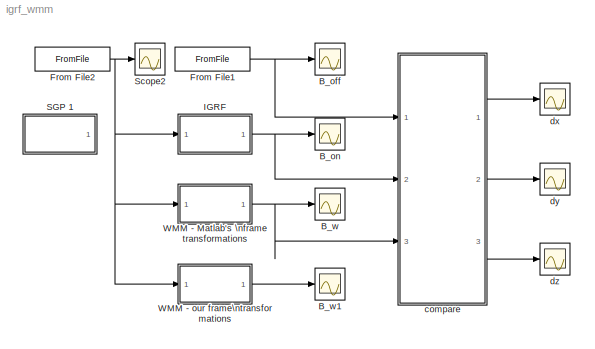
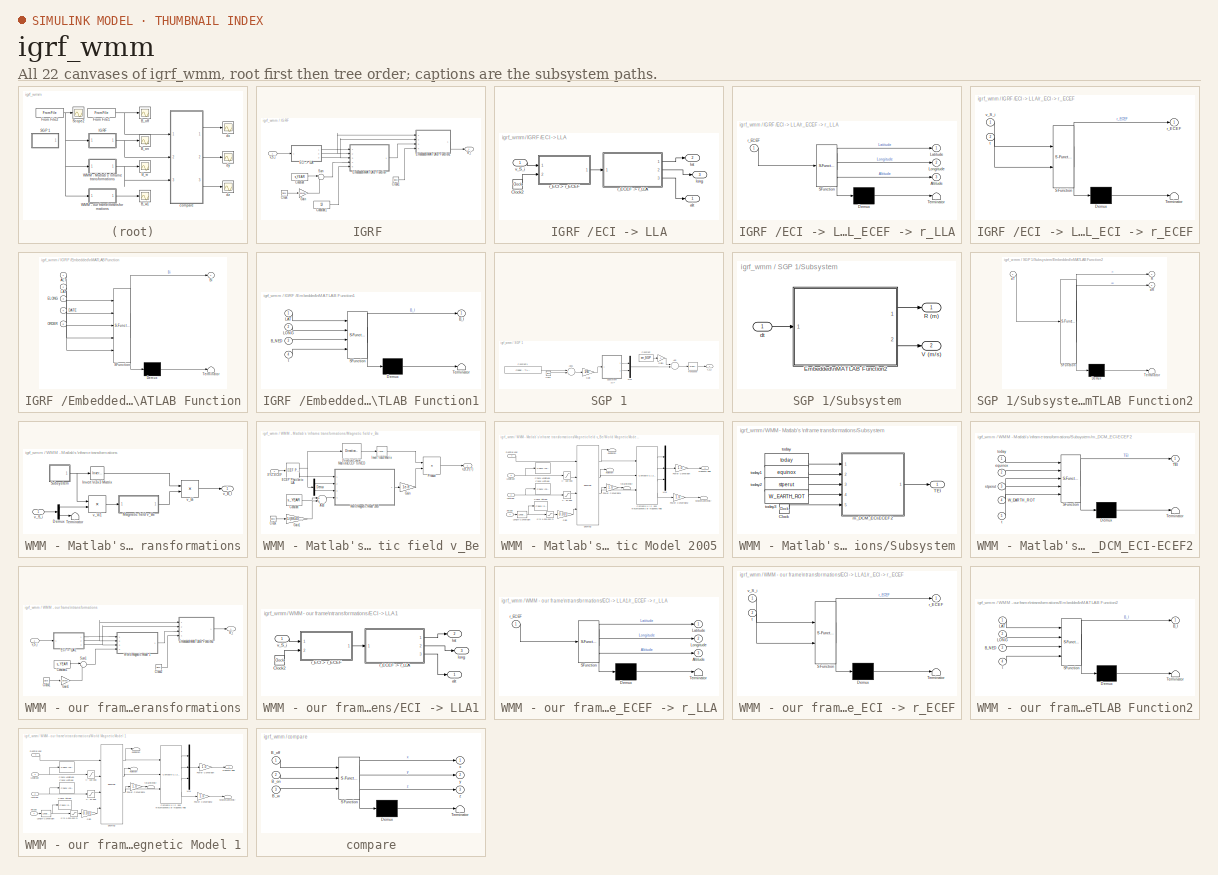
[diagram: thumbnail index - all 22 canvases of the model, root first then tree order]
MODEL igrf_wmm
KIND model
BLOCK [Scope] B_off
  DataFormat = StructureWithTime
  Decimation = 6
  Floating = off
  LimitDataPoints = off
  NumInputPorts = 1
  Ports = [1]
  SID = 62
  SampleTime = 0
  YMax = 35000
  YMin = -30000
BLOCK [Scope] B_on
  DataFormat = StructureWithTime
  Decimation = 6
  Floating = off
  LimitDataPoints = off
  NumInputPorts = 1
  Ports = [1]
  SID = 64
  SampleTime = 0
  SaveName = ScopeData1
  YMax = 20000
  YMin = -35000
BLOCK [Scope] B_w
  DataFormat = StructureWithTime
  Decimation = 6
  Floating = off
  LimitDataPoints = off
  NumInputPorts = 1
  Ports = [1]
  SID = 113
  SampleTime = 0
  SaveName = ScopeData3
  YMax = 20000
  YMin = -35000
BLOCK [Scope] B_w1
  DataFormat = StructureWithTime
  Decimation = 6
  Floating = off
  LimitDataPoints = off
  NumInputPorts = 1
  Ports = [1]
  SID = 183
  SampleTime = 0
  SaveName = ScopeData7
  YMax = 20000
  YMin = -35000
BLOCK [FromFile] From File1
  FileName = Bi_120k
  SID = 1
BLOCK [FromFile] From File2
  FileName = SGP_120k
  SID = 70
BLOCK [SubSystem] IGRF 
  FunctionWithSeparateData = off
  MaskHideContents = off
  MinAlgLoopOccurrences = off
  Opaque = off
  Ports = [1, 1]
  PropExecContextOutsideSubsystem = off
  RTWSystemCode = Auto
  RequestExecContextInheritance = off
  SID = 2
BLOCK [Outport] IGRF /B_i
  IconDisplay = Port number
  OutDataType = fixdt(1, 16)
  OutScaling = 2^0
  SID = 75
BLOCK [Clock] IGRF /Clock
  Decimation = 10
  SID = 58
BLOCK [Clock] IGRF /Clock1
  Decimation = 10
  SID = 76
BLOCK [Constant] IGRF /Constant
  OutDataType = fixdt(1, 16)
  OutScaling = 2^0
  SID = 57
  Value = s_YEAR
BLOCK [Constant] IGRF /Constant1
  OutDataType = fixdt(1, 16)
  OutScaling = 2^0
  SID = 61
  Value = 13
BLOCK [SubSystem] IGRF /ECI -> LLA
  FunctionWithSeparateData = off
  MaskHideContents = off
  MinAlgLoopOccurrences = off
  Opaque = off
  Ports = [1, 3]
  PropExecContextOutsideSubsystem = off
  RTWSystemCode = Auto
  RequestExecContextInheritance = off
  SID = 49
BLOCK [Clock] IGRF /ECI -> LLA/Clock2
  Decimation = 10
  SID = 51
BLOCK [Outport] IGRF /ECI -> LLA/alt
  IconDisplay = Port number
  SID = 56
BLOCK [Outport] IGRF /ECI -> LLA/lat
  IconDisplay = Port number
  Port = 2
  SID = 54
BLOCK [Outport] IGRF /ECI -> LLA/long
  IconDisplay = Port number
  Port = 3
  SID = 55
BLOCK [SubSystem] IGRF /ECI -> LLA/r_ECEF -> r_LLA
  FunctionWithSeparateData = off
  MaskDescription = Embedded MATLAB block
  MaskDisplay = disp('fcn');
  MaskHideContents = off
  MaskIconFrame = on
  MaskIconOpaque = off
  MaskIconRotate = none
  MaskIconUnits = autoscale
  MaskPortRotate = default
  MaskSelfModifiable = on
  MaskType = Stateflow
  MinAlgLoopOccurrences = off
  Opaque = off
  PermitHierarchicalResolution = ExplicitOnly
  Ports = [1, 3]
  PropExecContextOutsideSubsystem = off
  RTWSystemCode = Auto
  RequestExecContextInheritance = off
  SID = 52
BLOCK [Demux] IGRF /ECI -> LLA/r_ECEF -> r_LLA/ Demux 
  Outputs = 1
  Ports = [1, 1]
  SID = 7
BLOCK [S-Function] IGRF /ECI -> LLA/r_ECEF -> r_LLA/ SFunction 
  EnableBusSupport = on
  FunctionName = sf_sfun
  PortCounts = [1 4]
  Ports = [1, 4]
  SID = 6
  Tag = Stateflow S-Function igrf_wmm 2
BLOCK [Terminator] IGRF /ECI -> LLA/r_ECEF -> r_LLA/ Terminator 
  SID = 9
BLOCK [Outport] IGRF /ECI -> LLA/r_ECEF -> r_LLA/Altitude
  IconDisplay = Port number
  Port = 3
  SID = 11
BLOCK [Outport] IGRF /ECI -> LLA/r_ECEF -> r_LLA/Latitude
  IconDisplay = Port number
  OutDataType = sfix(16)
  OutScaling = 2^0
  SID = 5
BLOCK [Outport] IGRF /ECI -> LLA/r_ECEF -> r_LLA/Longitude
  IconDisplay = Port number
  Port = 2
  SID = 10
BLOCK [Inport] IGRF /ECI -> LLA/r_ECEF -> r_LLA/r_ECEF
  IconDisplay = Port number
  OutDataType = sfix(16)
  OutScaling = 2^0
  SID = 1
BLOCK [SubSystem] IGRF /ECI -> LLA/r_ECI -> r_ECEF
  FunctionWithSeparateData = off
  MaskDescription = Embedded MATLAB block
  MaskDisplay = disp('fcn');
  MaskHideContents = off
  MaskIconFrame = on
  MaskIconOpaque = off
  MaskIconRotate = none
  MaskIconUnits = autoscale
  MaskPortRotate = default
  MaskSelfModifiable = on
  MaskType = Stateflow
  MinAlgLoopOccurrences = off
  Opaque = off
  PermitHierarchicalResolution = ExplicitOnly
  Ports = [2, 1]
  PropExecContextOutsideSubsystem = off
  RTWSystemCode = Auto
  RequestExecContextInheritance = off
  SID = 53
BLOCK [Demux] IGRF /ECI -> LLA/r_ECI -> r_ECEF/ Demux 
  Outputs = 1
  Ports = [1, 1]
  SID = 7
BLOCK [S-Function] IGRF /ECI -> LLA/r_ECI -> r_ECEF/ SFunction 
  EnableBusSupport = on
  FunctionName = sf_sfun
  Parameters = equinox,today
  PortCounts = [2 2]
  Ports = [2, 2]
  SID = 6
  Tag = Stateflow S-Function igrf_wmm 4
BLOCK [Terminator] IGRF /ECI -> LLA/r_ECI -> r_ECEF/ Terminator 
  SID = 9
BLOCK [Outport] IGRF /ECI -> LLA/r_ECI -> r_ECEF/r_ECEF
  IconDisplay = Port number
  OutDataType = sfix(16)
  OutScaling = 2^0
  SID = 5
BLOCK [Inport] IGRF /ECI -> LLA/r_ECI -> r_ECEF/t
  IconDisplay = Port number
  Port = 2
  SID = 11
BLOCK [Inport] IGRF /ECI -> LLA/r_ECI -> r_ECEF/v_S_i
  IconDisplay = Port number
  SID = 14
BLOCK [Inport] IGRF /ECI -> LLA/v_S_i
  IconDisplay = Port number
  SID = 50
BLOCK [SubSystem] IGRF /Embedded\nMATLAB Function
  FunctionWithSeparateData = off
  MaskDescription = Embedded MATLAB block
  MaskDisplay = disp('igrf1');
  MaskHideContents = off
  MaskIconFrame = on
  MaskIconOpaque = off
  MaskIconRotate = none
  MaskIconUnits = autoscale
  MaskPortRotate = default
  MaskSelfModifiable = on
  MaskType = Stateflow
  MinAlgLoopOccurrences = off
  Opaque = off
  PermitHierarchicalResolution = ExplicitOnly
  Ports = [5, 1]
  PropExecContextOutsideSubsystem = off
  RTWSystemCode = Auto
  RequestExecContextInheritance = off
  SID = 48
BLOCK [Demux] IGRF /Embedded\nMATLAB Function/ Demux 
  Outputs = 1
  Ports = [1, 1]
  SID = 7
BLOCK [S-Function] IGRF /Embedded\nMATLAB Function/ SFunction 
  EnableBusSupport = on
  FunctionName = sf_sfun
  Parameters = agh,agh41,dgh,dgh41
  PortCounts = [5 2]
  Ports = [5, 2]
  SID = 6
  Tag = Stateflow S-Function igrf_wmm 1
BLOCK [Terminator] IGRF /Embedded\nMATLAB Function/ Terminator 
  SID = 9
BLOCK [Inport] IGRF /Embedded\nMATLAB Function/ALT
  IconDisplay = Port number
  OutDataType = sfix(16)
  OutScaling = 2^0
  SID = 1
BLOCK [Outport] IGRF /Embedded\nMATLAB Function/Bi
  IconDisplay = Port number
  OutDataType = sfix(16)
  OutScaling = 2^0
  SID = 5
BLOCK [Inport] IGRF /Embedded\nMATLAB Function/DATE
  IconDisplay = Port number
  Port = 4
  SID = 12
BLOCK [Inport] IGRF /Embedded\nMATLAB Function/ELONG
  IconDisplay = Port number
  Port = 3
  SID = 11
BLOCK [Inport] IGRF /Embedded\nMATLAB Function/LAT
  IconDisplay = Port number
  Port = 2
  SID = 10
BLOCK [Inport] IGRF /Embedded\nMATLAB Function/ORDER
  IconDisplay = Port number
  Port = 5
  SID = 13
BLOCK [SubSystem] IGRF /Embedded\nMATLAB Function1
  FunctionWithSeparateData = off
  MaskDescription = Embedded MATLAB block
  MaskDisplay = disp('fcn');
  MaskHideContents = off
  MaskIconFrame = on
  MaskIconOpaque = off
  MaskIconRotate = none
  MaskIconUnits = autoscale
  MaskPortRotate = default
  MaskSelfModifiable = on
  MaskType = Stateflow
  MinAlgLoopOccurrences = off
  Opaque = off
  PermitHierarchicalResolution = ExplicitOnly
  Ports = [4, 1]
  PropExecContextOutsideSubsystem = off
  RTWSystemCode = Auto
  RequestExecContextInheritance = off
  SID = 74
BLOCK [Demux] IGRF /Embedded\nMATLAB Function1/ Demux 
  Outputs = 1
  Ports = [1, 1]
  SID = 7
BLOCK [S-Function] IGRF /Embedded\nMATLAB Function1/ SFunction 
  EnableBusSupport = on
  FunctionName = sf_sfun
  Parameters = equinox,today
  PortCounts = [4 2]
  Ports = [4, 2]
  SID = 6
  Tag = Stateflow S-Function igrf_wmm 3
BLOCK [Terminator] IGRF /Embedded\nMATLAB Function1/ Terminator 
  SID = 9
BLOCK [Outport] IGRF /Embedded\nMATLAB Function1/B_I
  IconDisplay = Port number
  OutDataType = sfix(16)
  OutScaling = 2^0
  SID = 5
BLOCK [Inport] IGRF /Embedded\nMATLAB Function1/B_NED
  IconDisplay = Port number
  Port = 3
  SID = 12
BLOCK [Inport] IGRF /Embedded\nMATLAB Function1/LAT
  IconDisplay = Port number
  SID = 10
BLOCK [Inport] IGRF /Embedded\nMATLAB Function1/LONG
  IconDisplay = Port number
  Port = 2
  SID = 11
BLOCK [Inport] IGRF /Embedded\nMATLAB Function1/t
  IconDisplay = Port number
  Port = 4
  SID = 15
BLOCK [Gain] IGRF /Gain
  Gain = 1/86400/365
  OutDataType = fixdt(1, 16)
  OutDataTypeMode = Inherit via internal rule
  OutDataTypeStr = Inherit: Inherit via internal rule
  OutScaling = 2^0
  ParamDataTypeStr = Inherit: Inherit via internal rule
  ParameterDataType = fixdt(1, 16)
  ParameterDataTypeMode = Inherit via internal rule
  ParameterScaling = 2^0
  SID = 59
  SaturateOnIntegerOverflow = off
BLOCK [Sum] IGRF /Sum
  IconShape = round
  InputSameDT = off
  Inputs = |++
  OutDataType = fixdt(1, 16)
  OutDataTypeMode = Inherit via internal rule
  OutDataTypeStr = Inherit: Inherit via internal rule
  OutScaling = 2^0
  Ports = [2, 1]
  SID = 60
  SaturateOnIntegerOverflow = off
BLOCK [Inport] IGRF /v_S_i
  IconDisplay = Port number
  OutDataType = fixdt(1, 16)
  OutScaling = 2^0
  SID = 34
BLOCK [SubSystem] SGP 1
  FunctionWithSeparateData = off
  MaskHideContents = off
  MinAlgLoopOccurrences = off
  Opaque = off
  Ports = [0, 1]
  PropExecContextOutsideSubsystem = off
  RTWSystemCode = Auto
  RequestExecContextInheritance = off
  SID = 18
BLOCK [Sum] SGP 1/Add
  InputSameDT = off
  OutDataType = sfix(16)
  OutDataTypeMode = Inherit via internal rule
  OutDataTypeStr = Inherit: Inherit via internal rule
  OutScaling = 2^-10
  Ports = [2, 1]
  SID = 19
  SaturateOnIntegerOverflow = off
BLOCK [Sum] SGP 1/Add1
  InputSameDT = off
  OutDataType = sfix(16)
  OutDataTypeMode = Inherit via internal rule
  OutDataTypeStr = Inherit: Inherit via internal rule
  OutScaling = 2^-10
  Ports = [2, 1]
  SID = 20
  SaturateOnIntegerOverflow = off
BLOCK [Clock] SGP 1/Clock
  Decimation = 10
  SID = 21
BLOCK [Constant] SGP 1/Constant
  OutDataType = sfix(16)
  OutScaling = 2^0
  SID = 22
  Value = err_SGP
  VectorParams1D = off
BLOCK [Constant] SGP 1/Constant1
  OutDataType = sfix(16)
  OutScaling = 2^0
  SID = 23
  Value = (today - TLE_epoch) * 86400
  VectorParams1D = off
BLOCK [Gain] SGP 1/Gain
  Gain = 1/60
  OutDataType = sfix(16)
  OutDataTypeMode = Inherit via internal rule
  OutDataTypeStr = Inherit: Inherit via internal rule
  OutScaling = 2^0
  ParamDataTypeStr = Inherit: Inherit via internal rule
  ParameterDataType = sfix(16)
  ParameterDataTypeMode = Inherit via internal rule
  ParameterScaling = 2^0
  SID = 24
  SaturateOnIntegerOverflow = off
BLOCK [Gain] SGP 1/Gain1
  Gain = 0
  OutDataType = sfix(16)
  OutDataTypeMode = Inherit via internal rule
  OutDataTypeStr = Inherit: Inherit via internal rule
  OutScaling = 2^0
  ParamDataTypeStr = Inherit: Inherit via internal rule
  ParameterDataType = sfix(16)
  ParameterDataTypeMode = Inherit via internal rule
  ParameterScaling = 2^0
  SID = 25
  SaturateOnIntegerOverflow = off
BLOCK [Mux] SGP 1/Mux
  DisplayOption = bar
  Inputs = 2
  Ports = [2, 1]
  SID = 26
BLOCK [SubSystem] SGP 1/Subsystem
  FunctionWithSeparateData = off
  MaskHideContents = off
  MinAlgLoopOccurrences = off
  Opaque = off
  Ports = [1, 2]
  PropExecContextOutsideSubsystem = off
  RTWSystemCode = Auto
  RequestExecContextInheritance = off
  SID = 27
BLOCK [SubSystem] SGP 1/Subsystem/Embedded\nMATLAB Function2
  FunctionWithSeparateData = off
  MaskDescription = Embedded MATLAB block
  MaskDisplay = disp('sgp');
  MaskHideContents = off
  MaskIconFrame = on
  MaskIconOpaque = off
  MaskIconRotate = none
  MaskIconUnits = autoscale
  MaskPortRotate = default
  MaskSelfModifiable = on
  MaskType = Stateflow
  MinAlgLoopOccurrences = off
  Opaque = off
  PermitHierarchicalResolution = ExplicitOnly
  Ports = [1, 2]
  PropExecContextOutsideSubsystem = off
  RTWSystemCode = Auto
  RequestExecContextInheritance = off
  SID = 29
BLOCK [Demux] SGP 1/Subsystem/Embedded\nMATLAB Function2/ Demux 
  Outputs = 1
  Ports = [1, 1]
  SID = 9
BLOCK [S-Function] SGP 1/Subsystem/Embedded\nMATLAB Function2/ SFunction 
  EnableBusSupport = on
  FunctionName = sf_sfun
  Parameters = Bstar,M0,Ohm0,ddn0,dn0,e0,i0,n0,revNo,t0,w0
  PortCounts = [1 3]
  Ports = [1, 3]
  SID = 8
  Tag = Stateflow S-Function igrf_wmm 54
BLOCK [Terminator] SGP 1/Subsystem/Embedded\nMATLAB Function2/ Terminator 
  SID = 11
BLOCK [Outport] SGP 1/Subsystem/Embedded\nMATLAB Function2/R
  IconDisplay = Port number
  SID = 29
BLOCK [Outport] SGP 1/Subsystem/Embedded\nMATLAB Function2/dR
  IconDisplay = Port number
  Port = 2
  SID = 25
BLOCK [Inport] SGP 1/Subsystem/Embedded\nMATLAB Function2/dT
  IconDisplay = Port number
  SID = 23
BLOCK [Outport] SGP 1/Subsystem/R (m)
  IconDisplay = Port number
  SID = 30
BLOCK [Outport] SGP 1/Subsystem/V (m//s)
  IconDisplay = Port number
  Port = 2
  SID = 31
BLOCK [Inport] SGP 1/Subsystem/dt
  IconDisplay = Port number
  SID = 28
BLOCK [Reference] SGP 1/Transpose  REF=dspmtrx3/Transpose
  FunctionWithSeparateData = off
  Hermitian = off
  Ports = [1, 1]
  RTWMemSecDataConstants = Inherit from model
  RTWMemSecDataInternal = Inherit from model
  RTWMemSecDataParameters = Inherit from model
  RTWMemSecFuncExecute = Inherit from model
  RTWMemSecFuncInitTerm = Inherit from model
  SID = 32
  ShowPortLabels = FromPortIcon
  SourceBlock = dspmtrx3/Transpose
  SourceType = Transpose
  SystemSampleTime = -1
  overflowFlag = off
BLOCK [Outport] SGP 1/v_S_i
  IconDisplay = Port number
  OutDataType = sfix(16)
  OutScaling = 2^0
  SID = 33
BLOCK [Scope] Scope2
  DataFormat = StructureWithTime
  Decimation = 6
  Floating = off
  LimitDataPoints = off
  NumInputPorts = 1
  Ports = [1]
  SID = 71
  SampleTime = 0
  SaveName = ScopeData2
  YMax = 8e+006
  YMin = -7e+006
  ZoomMode = yonly
BLOCK [SubSystem] WMM - Matlab's \nframe transformations
  FunctionWithSeparateData = off
  MaskHideContents = off
  MinAlgLoopOccurrences = off
  Opaque = off
  Ports = [1, 1]
  PropExecContextOutsideSubsystem = off
  RTWSystemCode = Auto
  RequestExecContextInheritance = off
  SID = 83
BLOCK [Demux] WMM - Matlab's \nframe transformations/Demux
  DisplayOption = bar
  Outputs = 2
  Ports = [1, 2]
  SID = 85
BLOCK [Reference] WMM - Matlab's \nframe transformations/Invert \n3x3 Matrix  REF=aerolibutil/Invert \n3x3 Matrix
  FunctionWithSeparateData = off
  Ports = [1, 1]
  RTWMemSecDataConstants = Inherit from model
  RTWMemSecDataInternal = Inherit from model
  RTWMemSecDataParameters = Inherit from model
  RTWMemSecFuncExecute = Inherit from model
  RTWMemSecFuncInitTerm = Inherit from model
  SID = 86
  ShowPortLabels = FromPortIcon
  SourceBlock = aerolibutil/Invert \n3x3 Matrix
  SourceType = Invert 3x3 Matrix
  SystemSampleTime = -1
BLOCK [SubSystem] WMM - Matlab's \nframe transformations/Magnetic field v_Be
  FunctionWithSeparateData = off
  MaskHideContents = off
  MinAlgLoopOccurrences = off
  Opaque = off
  Ports = [1, 1]
  PropExecContextOutsideSubsystem = off
  RTWSystemCode = Auto
  RequestExecContextInheritance = off
  SID = 87
BLOCK [Sum] WMM - Matlab's \nframe transformations/Magnetic field v_Be/Add
  InputSameDT = off
  OutDataType = sfix(16)
  OutDataTypeMode = Inherit via internal rule
  OutDataTypeStr = Inherit: Inherit via internal rule
  OutScaling = 2^-10
  Ports = [2, 1]
  SID = 89
  SaturateOnIntegerOverflow = off
BLOCK [Clock] WMM - Matlab's \nframe transformations/Magnetic field v_Be/Clock
  Decimation = 10
  SID = 90
BLOCK [Constant] WMM - Matlab's \nframe transformations/Magnetic field v_Be/Constant
  OutDataType = sfix(16)
  OutScaling = 2^0
  SID = 91
  Value = s_YEAR
BLOCK [Demux] WMM - Matlab's \nframe transformations/Magnetic field v_Be/Demux
  DisplayOption = bar
  Outputs = 2
  Ports = [1, 2]
  SID = 92
BLOCK [Reference] WMM - Matlab's \nframe transformations/Magnetic field v_Be/Direction Cosine Matrix\nECEF to NED  REF=aerolibtransform2/Direction Cosine Matrix\nECEF to NED
  FunctionWithSeparateData = off
  Ports = [1, 1]
  RTWMemSecDataConstants = Inherit from model
  RTWMemSecDataInternal = Inherit from model
  RTWMemSecDataParameters = Inherit from model
  RTWMemSecFuncExecute = Inherit from model
  RTWMemSecFuncInitTerm = Inherit from model
  SID = 93
  ShowPortLabels = none
  SourceBlock = aerolibtransform2/Direction Cosine Matrix\nECEF to NED
  SourceType = DCM ECEF to NED
  SystemSampleTime = -1
BLOCK [Reference] WMM - Matlab's \nframe transformations/Magnetic field v_Be/ECEF Position to LLA  REF=aerolibtransform2/ECEF Position to LLA
  F = 1/298.257223563
  FunctionWithSeparateData = off
  Ports = [1, 2]
  R = 6378137
  RTWMemSecDataConstants = Inherit from model
  RTWMemSecDataInternal = Inherit from model
  RTWMemSecDataParameters = Inherit from model
  RTWMemSecFuncExecute = Inherit from model
  RTWMemSecFuncInitTerm = Inherit from model
  SID = 94
  ShowPortLabels = FromPortIcon
  SourceBlock = aerolibtransform2/ECEF Position to LLA
  SourceType = ECEF to LLA
  SystemSampleTime = -1
  ptype = Earth (WGS84)
  units = Metric (MKS)
BLOCK [Gain] WMM - Matlab's \nframe transformations/Magnetic field v_Be/Gain
  Gain = 1e-9
  OutDataType = sfix(16)
  OutDataTypeMode = Inherit via internal rule
  OutDataTypeStr = Inherit: Inherit via internal rule
  OutScaling = 2^0
  ParamDataTypeStr = Inherit: Inherit via internal rule
  ParameterDataType = sfix(16)
  ParameterDataTypeMode = Inherit via internal rule
  ParameterScaling = 2^0
  SID = 95
  SaturateOnIntegerOverflow = off
BLOCK [Gain] WMM - Matlab's \nframe transformations/Magnetic field v_Be/Gain1
  Gain = 1/(86400*365)
  OutDataType = sfix(16)
  OutDataTypeMode = Inherit via internal rule
  OutDataTypeStr = Inherit: Inherit via internal rule
  OutScaling = 2^0
  ParamDataTypeStr = Inherit: Inherit via internal rule
  ParameterDataType = sfix(16)
  ParameterDataTypeMode = Inherit via internal rule
  ParameterScaling = 2^0
  SID = 96
  SaturateOnIntegerOverflow = off
BLOCK [Reference] WMM - Matlab's \nframe transformations/Magnetic field v_Be/Invert \n3x3 Matrix  REF=aerolibutil/Invert \n3x3 Matrix
  FunctionWithSeparateData = off
  Ports = [1, 1]
  RTWMemSecDataConstants = Inherit from model
  RTWMemSecDataInternal = Inherit from model
  RTWMemSecDataParameters = Inherit from model
  RTWMemSecFuncExecute = Inherit from model
  RTWMemSecFuncInitTerm = Inherit from model
  SID = 97
  ShowPortLabels = FromPortIcon
  SourceBlock = aerolibutil/Invert \n3x3 Matrix
  SourceType = Invert 3x3 Matrix
  SystemSampleTime = -1
BLOCK [Product] WMM - Matlab's \nframe transformations/Magnetic field v_Be/Product
  InputSameDT = off
  Multiplication = Matrix(*)
  OutDataType = sfix(16)
  OutDataTypeMode = Inherit via internal rule
  OutDataTypeStr = Inherit: Inherit via internal rule
  OutScaling = 2^0
  Ports = [2, 1]
  SID = 98
  SaturateOnIntegerOverflow = off
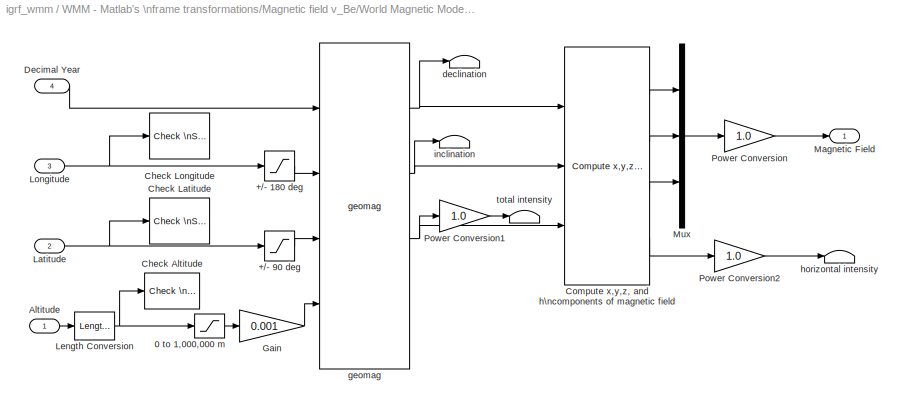
BLOCK [SubSystem] WMM - Matlab's \nframe transformations/Magnetic field v_Be/World Magnetic Model 2005
  AncestorBlock = aerolibgravity2/World Magnetic Model 2005
  FunctionWithSeparateData = off
  MaskCallbackString = |aeroicon('aeroblkwmm');|aeroicon('aeroblkwmm');|aeroicon('aeroblkwmm');|aeroicon('aeroblkwmm');|||||
  MaskDescription = Calculate the Earth's magnetic field at a specific location and time using the World Magnetic Model (WMM). This model is valid for the year 2005 through the year 2010.\n\nThe WMM-2005 can be found on the web at http://www.ngdc.noaa.gov/seg/WMM/DoDWMM.shtml and in \"NOAA Technical Report: The US/UK World Magnetic Model for 2005-2010 \".\n\nHeight is entered in length units of selected unit system. ...<+46ch>
  MaskDisplay = port_label(ports(1).type,ports(1).port,ports(1).txt);\nport_label(ports(2).type,ports(2).port,ports(2).txt,'texmode','on');\nport_label(ports(3).type,ports(3).port,ports(3).txt,'texmode','on');\nport_label(ports(4).type,ports(4).port,ports(4).txt);\nport_label(ports(5).type,ports(5).port,ports(5).txt);\nport_label(ports(6).type,ports(6).port,ports(6).txt);\nport_label(ports(7).type,ports(7).port,p...<+125ch>
  MaskEnableString = on,on,off,off,off,on,on,on,on,on
  MaskHelp = eval('asbhelp');
  MaskHideContents = off
  MaskIconFrame = on
  MaskIconOpaque = on
  MaskIconRotate = none
  MaskIconUnits = autoscale
  MaskInitialization = [ports,dyear,maxdef,epoch,c,cd,fn,fm,snorm,k]=aeroicon('aeroblkwmm2005','icon');
  MaskPortRotate = default
  MaskPromptString = Units:|Input decimal year|Month:|Day:|Year:|Action for out of range input:|Output horizontal intensity|Output declination|Output inclination|Output total intensity
  MaskSelfModifiable = on
  MaskStyleString = popup(Metric (MKS)|English),checkbox,popup(January|February|March|April|May|June|July|August|September|October|November|December),popup(1|2|3|4|5|6|7|8|9|10|11|12|13|14|15|16|17|18|19|20|21|22|23|24|25|26|27|28|29|30|31),popup(2005|2006|2007|2008|2009|2010),popup(None|Warning|Error),checkbox,checkbox,checkbox,checkbox
  MaskToolTipString = on,on,on,on,on,on,on,on,on,on
  MaskTunableValueString = off,off,on,on,on,off,off,off,off,off
  MaskType = World Magnetic Model 2005
  MaskValueString = Metric (MKS)|on|January|1|2005|Error|off|off|off|off
  MaskVariables = units=@1;time_in=@2;month=&3;day=&4;year=&5;action=@6;h_out=@7;dec_out=@8;inc_out=@9;ti_out=@10;
  MaskVisibilityString = on,on,on,on,on,on,on,on,on,on
  MinAlgLoopOccurrences = off
  Opaque = off
  Ports = [4, 1]
  PropExecContextOutsideSubsystem = off
  RTWSystemCode = Auto
  RequestExecContextInheritance = off
  SID = 99
BLOCK [Saturate] WMM - Matlab's \nframe transformations/Magnetic field v_Be/World Magnetic Model 2005/+//- 180 deg
  LowerLimit = -180.0
  OutDataType = sfix(16)
  OutScaling = 2^0
  SID = 5
  UpperLimit = 180.0
BLOCK [Saturate] WMM - Matlab's \nframe transformations/Magnetic field v_Be/World Magnetic Model 2005/+//- 90 deg
  LowerLimit = -90.0
  OutDataType = sfix(16)
  OutScaling = 2^0
  SID = 6
  UpperLimit = 90.0
BLOCK [Saturate] WMM - Matlab's \nframe transformations/Magnetic field v_Be/World Magnetic Model 2005/0 to 1,000,000 m
  LowerLimit = 0
  OutDataType = sfix(16)
  OutScaling = 2^0
  SID = 7
  UpperLimit = 1000000.0
BLOCK [Inport] WMM - Matlab's \nframe transformations/Magnetic field v_Be/World Magnetic Model 2005/Altitude
  IconDisplay = Port number
  OutDataType = sfix(16)
  OutScaling = 2^0
  SID = 1
BLOCK [Reference] WMM - Matlab's \nframe transformations/Magnetic field v_Be/World Magnetic Model 2005/Check Altitude  REF=simulink/Model\nVerification/Check \nStatic Range
  Description = 0 <= u <= 1000000
  FunctionWithSeparateData = off
  Ports = [1]
  RTWMemSecDataConstants = Inherit from model
  RTWMemSecDataInternal = Inherit from model
  RTWMemSecDataParameters = Inherit from model
  RTWMemSecFuncExecute = Inherit from model
  RTWMemSecFuncInitTerm = Inherit from model
  SID = 8
  ShowPortLabels = FromPortIcon
  SourceBlock = simulink/Model\nVerification/Check \nStatic Range
  SourceType = Checks_SRange
  SystemSampleTime = -1
  callback = aeroassertmsg('aeroblkwmm','alt');
  enabled = on
  export = off
  icon = graphic
  max = 1000000
  max_included = on
  min = 0
  min_included = on
  stopWhenAssertionFail = on
BLOCK [Reference] WMM - Matlab's \nframe transformations/Magnetic field v_Be/World Magnetic Model 2005/Check Latitude  REF=simulink/Model\nVerification/Check \nStatic Range
  Description = -90 <= u <= 90
  FunctionWithSeparateData = off
  Ports = [1]
  RTWMemSecDataConstants = Inherit from model
  RTWMemSecDataInternal = Inherit from model
  RTWMemSecDataParameters = Inherit from model
  RTWMemSecFuncExecute = Inherit from model
  RTWMemSecFuncInitTerm = Inherit from model
  SID = 9
  ShowPortLabels = FromPortIcon
  SourceBlock = simulink/Model\nVerification/Check \nStatic Range
  SourceType = Checks_SRange
  SystemSampleTime = -1
  callback = aeroassertmsg('aeroblkwmm','lat');
  enabled = on
  export = off
  icon = graphic
  max = 90
  max_included = on
  min = -90
  min_included = on
  stopWhenAssertionFail = on
BLOCK [Reference] WMM - Matlab's \nframe transformations/Magnetic field v_Be/World Magnetic Model 2005/Check Longitude  REF=simulink/Model\nVerification/Check \nStatic Range
  Description = -180 <= u <= 180
  FunctionWithSeparateData = off
  Ports = [1]
  RTWMemSecDataConstants = Inherit from model
  RTWMemSecDataInternal = Inherit from model
  RTWMemSecDataParameters = Inherit from model
  RTWMemSecFuncExecute = Inherit from model
  RTWMemSecFuncInitTerm = Inherit from model
  SID = 10
  ShowPortLabels = FromPortIcon
  SourceBlock = simulink/Model\nVerification/Check \nStatic Range
  SourceType = Checks_SRange
  SystemSampleTime = -1
  callback = aeroassertmsg('aeroblkwmm','lon');
  enabled = on
  export = off
  icon = graphic
  max = 180
  max_included = on
  min = -180
  min_included = on
  stopWhenAssertionFail = on
BLOCK [Reference] WMM - Matlab's \nframe transformations/Magnetic field v_Be/World Magnetic Model 2005/Compute x,y,z, and h\ncomponents of magnetic field  REF=aerolibgravitysys/Compute x,y,z, and h\ncomponents of magnetic field
  FunctionWithSeparateData = off
  Ports = [3, 4]
  RTWMemSecDataConstants = Inherit from model
  RTWMemSecDataInternal = Inherit from model
  RTWMemSecDataParameters = Inherit from model
  RTWMemSecFuncExecute = Inherit from model
  RTWMemSecFuncInitTerm = Inherit from model
  SID = 11
  ShowPortLabels = FromPortIcon
  SourceBlock = aerolibgravitysys/Compute x,y,z, and h\ncomponents of magnetic field
  SourceType = SubSystem
  SystemSampleTime = -1
BLOCK [Inport] WMM - Matlab's \nframe transformations/Magnetic field v_Be/World Magnetic Model 2005/Decimal Year
  IconDisplay = Port number
  OutDataType = sfix(16)
  OutScaling = 2^0
  Port = 4
  SID = 4
BLOCK [Gain] WMM - Matlab's \nframe transformations/Magnetic field v_Be/World Magnetic Model 2005/Gain
  Gain = 0.001
  OutDataType = sfix(16)
  OutScaling = 2^0
  ParameterDataType = sfix(16)
  ParameterScaling = 2^0
  SID = 12
BLOCK [Inport] WMM - Matlab's \nframe transformations/Magnetic field v_Be/World Magnetic Model 2005/Latitude
  IconDisplay = Port number
  OutDataType = sfix(16)
  OutScaling = 2^0
  Port = 2
  SID = 2
BLOCK [Reference] WMM - Matlab's \nframe transformations/Magnetic field v_Be/World Magnetic Model 2005/Length Conversion  REF=aerolibconvert2/Length Conversion
  FunctionWithSeparateData = off
  IU = m
  OU = m
  Ports = [1, 1]
  RTWMemSecDataConstants = Inherit from model
  RTWMemSecDataInternal = Inherit from model
  RTWMemSecDataParameters = Inherit from model
  RTWMemSecFuncExecute = Inherit from model
  RTWMemSecFuncInitTerm = Inherit from model
  SID = 14
  ShowPortLabels = FromPortIcon
  SourceBlock = aerolibconvert2/Length Conversion
  SourceType = Length Conversion
  SystemSampleTime = -1
BLOCK [Inport] WMM - Matlab's \nframe transformations/Magnetic field v_Be/World Magnetic Model 2005/Longitude
  IconDisplay = Port number
  OutDataType = sfix(16)
  OutScaling = 2^0
  Port = 3
  SID = 3
BLOCK [Outport] WMM - Matlab's \nframe transformations/Magnetic field v_Be/World Magnetic Model 2005/Magnetic Field
  IconDisplay = Port number
  OutDataType = sfix(16)
  OutScaling = 2^0
  SID = 20
BLOCK [Mux] WMM - Matlab's \nframe transformations/Magnetic field v_Be/World Magnetic Model 2005/Mux
  DisplayOption = bar
  Inputs = 3
  Ports = [3, 1]
  SID = 15
BLOCK [Gain] WMM - Matlab's \nframe transformations/Magnetic field v_Be/World Magnetic Model 2005/Power Conversion
  Gain = 1.0
  OutDataType = sfix(16)
  OutScaling = 2^0
  ParameterDataType = sfix(16)
  ParameterScaling = 2^0
  SID = 16
BLOCK [Gain] WMM - Matlab's \nframe transformations/Magnetic field v_Be/World Magnetic Model 2005/Power Conversion1
  Gain = 1.0
  OutDataType = sfix(16)
  OutScaling = 2^0
  ParameterDataType = sfix(16)
  ParameterScaling = 2^0
  SID = 17
BLOCK [Gain] WMM - Matlab's \nframe transformations/Magnetic field v_Be/World Magnetic Model 2005/Power Conversion2
  Gain = 1.0
  OutDataType = sfix(16)
  OutScaling = 2^0
  ParameterDataType = sfix(16)
  ParameterScaling = 2^0
  SID = 18
BLOCK [Terminator] WMM - Matlab's \nframe transformations/Magnetic field v_Be/World Magnetic Model 2005/declination
  SID = 27
BLOCK [Reference] WMM - Matlab's \nframe transformations/Magnetic field v_Be/World Magnetic Model 2005/geomag  REF=aerolibgravitysys/geomag
  FunctionWithSeparateData = off
  Ports = [4, 4]
  RTWMemSecDataConstants = Inherit from model
  RTWMemSecDataInternal = Inherit from model
  RTWMemSecDataParameters = Inherit from model
  RTWMemSecFuncExecute = Inherit from model
  RTWMemSecFuncInitTerm = Inherit from model
  SID = 19
  ShowPortLabels = FromPortIcon
  SourceBlock = aerolibgravitysys/geomag
  SourceType = SubSystem
  SystemSampleTime = -1
BLOCK [Terminator] WMM - Matlab's \nframe transformations/Magnetic field v_Be/World Magnetic Model 2005/horizontal intensity
  SID = 28
BLOCK [Terminator] WMM - Matlab's \nframe transformations/Magnetic field v_Be/World Magnetic Model 2005/inclination
  SID = 26
BLOCK [Terminator] WMM - Matlab's \nframe transformations/Magnetic field v_Be/World Magnetic Model 2005/total intensity
  SID = 25
BLOCK [Inport] WMM - Matlab's \nframe transformations/Magnetic field v_Be/XYZ-ECEF
  IconDisplay = Port number
  OutDataType = sfix(16)
  OutScaling = 2^0
  SID = 88
BLOCK [Outport] WMM - Matlab's \nframe transformations/Magnetic field v_Be/v_B_e (T) 
  IconDisplay = Port number
  OutDataType = sfix(16)
  OutScaling = 2^0
  SID = 100
BLOCK [SubSystem] WMM - Matlab's \nframe transformations/Subsystem
  FunctionWithSeparateData = off
  MaskHideContents = off
  MinAlgLoopOccurrences = off
  Opaque = off
  Ports = [0, 1]
  PropExecContextOutsideSubsystem = off
  RTWSystemCode = Auto
  RequestExecContextInheritance = off
  SID = 101
BLOCK [Clock] WMM - Matlab's \nframe transformations/Subsystem/Clock
  Decimation = 10
  SID = 102
BLOCK [Outport] WMM - Matlab's \nframe transformations/Subsystem/TEI
  IconDisplay = Port number
  SID = 108
BLOCK [SubSystem] WMM - Matlab's \nframe transformations/Subsystem/m_DCM_ECI-ECEF2
  FunctionWithSeparateData = off
  MaskDescription = Embedded MATLAB block
  MaskDisplay = disp('fcn');
  MaskHideContents = off
  MaskIconFrame = on
  MaskIconOpaque = off
  MaskIconRotate = none
  MaskIconUnits = autoscale
  MaskPortRotate = default
  MaskSelfModifiable = on
  MaskType = Stateflow
  MinAlgLoopOccurrences = off
  Opaque = off
  PermitHierarchicalResolution = ExplicitOnly
  Ports = [5, 1]
  PropExecContextOutsideSubsystem = off
  RTWSystemCode = Auto
  RequestExecContextInheritance = off
  SID = 103
BLOCK [Demux] WMM - Matlab's \nframe transformations/Subsystem/m_DCM_ECI-ECEF2/ Demux 
  Outputs = 1
  Ports = [1, 1]
  SID = 11
BLOCK [S-Function] WMM - Matlab's \nframe transformations/Subsystem/m_DCM_ECI-ECEF2/ SFunction 
  EnableBusSupport = on
  FunctionName = sf_sfun
  PortCounts = [5 2]
  Ports = [5, 2]
  SID = 10
  Tag = Stateflow S-Function igrf_wmm 14
BLOCK [Terminator] WMM - Matlab's \nframe transformations/Subsystem/m_DCM_ECI-ECEF2/ Terminator 
  SID = 13
BLOCK [Outport] WMM - Matlab's \nframe transformations/Subsystem/m_DCM_ECI-ECEF2/TEI
  IconDisplay = Port number
  OutDataType = sfix(16)
  OutScaling = 2^0
  SID = 9
BLOCK [Inport] WMM - Matlab's \nframe transformations/Subsystem/m_DCM_ECI-ECEF2/W_EARTH_ROT
  IconDisplay = Port number
  Port = 4
  SID = 4
BLOCK [Inport] WMM - Matlab's \nframe transformations/Subsystem/m_DCM_ECI-ECEF2/equinox
  IconDisplay = Port number
  Port = 2
  SID = 2
BLOCK [Inport] WMM - Matlab's \nframe transformations/Subsystem/m_DCM_ECI-ECEF2/stperut
  IconDisplay = Port number
  Port = 3
  SID = 3
BLOCK [Inport] WMM - Matlab's \nframe transformations/Subsystem/m_DCM_ECI-ECEF2/t
  IconDisplay = Port number
  Port = 5
  SID = 5
BLOCK [Inport] WMM - Matlab's \nframe transformations/Subsystem/m_DCM_ECI-ECEF2/today
  IconDisplay = Port number
  SID = 1
BLOCK [Constant] WMM - Matlab's \nframe transformations/Subsystem/today
  OutDataType = sfix(16)
  OutScaling = 2^0
  SID = 104
  Value = today
BLOCK [Constant] WMM - Matlab's \nframe transformations/Subsystem/today1
  OutDataType = sfix(16)
  OutScaling = 2^0
  SID = 105
  Value = equinox
BLOCK [Constant] WMM - Matlab's \nframe transformations/Subsystem/today2
  OutDataType = sfix(16)
  OutScaling = 2^0
  SID = 106
  Value = stperut
BLOCK [Constant] WMM - Matlab's \nframe transformations/Subsystem/today3
  OutDataType = sfix(16)
  OutScaling = 2^0
  SID = 107
  Value = W_EARTH_ROT
BLOCK [Terminator] WMM - Matlab's \nframe transformations/Terminator
  SID = 109
BLOCK [Outport] WMM - Matlab's \nframe transformations/v_B_I
  IconDisplay = Port number
  OutDataType = sfix(16)
  OutScaling = 2^0
  SID = 112
BLOCK [Product] WMM - Matlab's \nframe transformations/v_Bi
  InputSameDT = off
  Multiplication = Matrix(*)
  OutDataType = sfix(16)
  OutDataTypeMode = Inherit via internal rule
  OutDataTypeStr = Inherit: Inherit via internal rule
  OutScaling = 2^0
  Ports = [2, 1]
  SID = 110
  SaturateOnIntegerOverflow = off
BLOCK [Inport] WMM - Matlab's \nframe transformations/v_S_i
  IconDisplay = Port number
  OutDataType = sfix(16)
  OutScaling = 2^0
  SID = 84
BLOCK [Product] WMM - Matlab's \nframe transformations/v_Vi1
  InputSameDT = off
  Multiplication = Matrix(*)
  OutDataType = sfix(16)
  OutDataTypeMode = Inherit via internal rule
  OutDataTypeStr = Inherit: Inherit via internal rule
  OutScaling = 2^0
  Ports = [2, 1]
  SID = 111
  SaturateOnIntegerOverflow = off
BLOCK [SubSystem] WMM - our frame\ntransformations
  FunctionWithSeparateData = off
  MaskHideContents = off
  MinAlgLoopOccurrences = off
  Opaque = off
  Ports = [1, 1]
  PropExecContextOutsideSubsystem = off
  RTWSystemCode = Auto
  RequestExecContextInheritance = off
  SID = 120
BLOCK [Outport] WMM - our frame\ntransformations/B_i
  IconDisplay = Port number
  OutDataType = fixdt(1, 16)
  OutScaling = 2^0
  SID = 181
BLOCK [Clock] WMM - our frame\ntransformations/Clock1
  Decimation = 10
  SID = 165
BLOCK [Clock] WMM - our frame\ntransformations/Clock2
  Decimation = 10
  SID = 166
BLOCK [Constant] WMM - our frame\ntransformations/Constant1
  OutDataType = fixdt(1, 16)
  OutScaling = 2^0
  SID = 167
  Value = s_YEAR
BLOCK [SubSystem] WMM - our frame\ntransformations/ECI -> LLA1
  FunctionWithSeparateData = off
  MaskHideContents = off
  MinAlgLoopOccurrences = off
  Opaque = off
  Ports = [1, 3]
  PropExecContextOutsideSubsystem = off
  RTWSystemCode = Auto
  RequestExecContextInheritance = off
  SID = 169
BLOCK [Clock] WMM - our frame\ntransformations/ECI -> LLA1/Clock2
  Decimation = 10
  SID = 171
BLOCK [Outport] WMM - our frame\ntransformations/ECI -> LLA1/alt
  IconDisplay = Port number
  SID = 174
BLOCK [Outport] WMM - our frame\ntransformations/ECI -> LLA1/lat
  IconDisplay = Port number
  Port = 2
  SID = 175
BLOCK [Outport] WMM - our frame\ntransformations/ECI -> LLA1/long
  IconDisplay = Port number
  Port = 3
  SID = 176
BLOCK [SubSystem] WMM - our frame\ntransformations/ECI -> LLA1/r_ECEF -> r_LLA
  FunctionWithSeparateData = off
  MaskDescription = Embedded MATLAB block
  MaskDisplay = disp('fcn');
  MaskHideContents = off
  MaskIconFrame = on
  MaskIconOpaque = off
  MaskIconRotate = none
  MaskIconUnits = autoscale
  MaskPortRotate = default
  MaskSelfModifiable = on
  MaskType = Stateflow
  MinAlgLoopOccurrences = off
  Opaque = off
  PermitHierarchicalResolution = ExplicitOnly
  Ports = [1, 3]
  PropExecContextOutsideSubsystem = off
  RTWSystemCode = Auto
  RequestExecContextInheritance = off
  SID = 172
BLOCK [Demux] WMM - our frame\ntransformations/ECI -> LLA1/r_ECEF -> r_LLA/ Demux 
  Outputs = 1
  Ports = [1, 1]
  SID = 7
BLOCK [S-Function] WMM - our frame\ntransformations/ECI -> LLA1/r_ECEF -> r_LLA/ SFunction 
  EnableBusSupport = on
  FunctionName = sf_sfun
  PortCounts = [1 4]
  Ports = [1, 4]
  SID = 6
  Tag = Stateflow S-Function igrf_wmm 9
BLOCK [Terminator] WMM - our frame\ntransformations/ECI -> LLA1/r_ECEF -> r_LLA/ Terminator 
  SID = 9
BLOCK [Outport] WMM - our frame\ntransformations/ECI -> LLA1/r_ECEF -> r_LLA/Altitude
  IconDisplay = Port number
  Port = 3
  SID = 11
BLOCK [Outport] WMM - our frame\ntransformations/ECI -> LLA1/r_ECEF -> r_LLA/Latitude
  IconDisplay = Port number
  OutDataType = sfix(16)
  OutScaling = 2^0
  SID = 5
BLOCK [Outport] WMM - our frame\ntransformations/ECI -> LLA1/r_ECEF -> r_LLA/Longitude
  IconDisplay = Port number
  Port = 2
  SID = 10
BLOCK [Inport] WMM - our frame\ntransformations/ECI -> LLA1/r_ECEF -> r_LLA/r_ECEF
  IconDisplay = Port number
  OutDataType = sfix(16)
  OutScaling = 2^0
  SID = 1
BLOCK [SubSystem] WMM - our frame\ntransformations/ECI -> LLA1/r_ECI -> r_ECEF
  FunctionWithSeparateData = off
  MaskDescription = Embedded MATLAB block
  MaskDisplay = disp('fcn');
  MaskHideContents = off
  MaskIconFrame = on
  MaskIconOpaque = off
  MaskIconRotate = none
  MaskIconUnits = autoscale
  MaskPortRotate = default
  MaskSelfModifiable = on
  MaskType = Stateflow
  MinAlgLoopOccurrences = off
  Opaque = off
  PermitHierarchicalResolution = ExplicitOnly
  Ports = [2, 1]
  PropExecContextOutsideSubsystem = off
  RTWSystemCode = Auto
  RequestExecContextInheritance = off
  SID = 173
BLOCK [Demux] WMM - our frame\ntransformations/ECI -> LLA1/r_ECI -> r_ECEF/ Demux 
  Outputs = 1
  Ports = [1, 1]
  SID = 7
BLOCK [S-Function] WMM - our frame\ntransformations/ECI -> LLA1/r_ECI -> r_ECEF/ SFunction 
  EnableBusSupport = on
  FunctionName = sf_sfun
  Parameters = equinox,today
  PortCounts = [2 2]
  Ports = [2, 2]
  SID = 6
  Tag = Stateflow S-Function igrf_wmm 10
BLOCK [Terminator] WMM - our frame\ntransformations/ECI -> LLA1/r_ECI -> r_ECEF/ Terminator 
  SID = 9
BLOCK [Outport] WMM - our frame\ntransformations/ECI -> LLA1/r_ECI -> r_ECEF/r_ECEF
  IconDisplay = Port number
  OutDataType = sfix(16)
  OutScaling = 2^0
  SID = 5
BLOCK [Inport] WMM - our frame\ntransformations/ECI -> LLA1/r_ECI -> r_ECEF/t
  IconDisplay = Port number
  Port = 2
  SID = 11
BLOCK [Inport] WMM - our frame\ntransformations/ECI -> LLA1/r_ECI -> r_ECEF/v_S_i
  IconDisplay = Port number
  SID = 14
BLOCK [Inport] WMM - our frame\ntransformations/ECI -> LLA1/v_S_i
  IconDisplay = Port number
  SID = 170
BLOCK [SubSystem] WMM - our frame\ntransformations/Embedded\nMATLAB Function2
  FunctionWithSeparateData = off
  MaskDescription = Embedded MATLAB block
  MaskDisplay = disp('fcn');
  MaskHideContents = off
  MaskIconFrame = on
  MaskIconOpaque = off
  MaskIconRotate = none
  MaskIconUnits = autoscale
  MaskPortRotate = default
  MaskSelfModifiable = on
  MaskType = Stateflow
  MinAlgLoopOccurrences = off
  Opaque = off
  PermitHierarchicalResolution = ExplicitOnly
  Ports = [4, 1]
  PropExecContextOutsideSubsystem = off
  RTWSystemCode = Auto
  RequestExecContextInheritance = off
  SID = 178
BLOCK [Demux] WMM - our frame\ntransformations/Embedded\nMATLAB Function2/ Demux 
  Outputs = 1
  Ports = [1, 1]
  SID = 7
BLOCK [S-Function] WMM - our frame\ntransformations/Embedded\nMATLAB Function2/ SFunction 
  EnableBusSupport = on
  FunctionName = sf_sfun
  Parameters = equinox,today
  PortCounts = [4 2]
  Ports = [4, 2]
  SID = 6
  Tag = Stateflow S-Function igrf_wmm 12
BLOCK [Terminator] WMM - our frame\ntransformations/Embedded\nMATLAB Function2/ Terminator 
  SID = 9
BLOCK [Outport] WMM - our frame\ntransformations/Embedded\nMATLAB Function2/B_I
  IconDisplay = Port number
  OutDataType = sfix(16)
  OutScaling = 2^0
  SID = 5
BLOCK [Inport] WMM - our frame\ntransformations/Embedded\nMATLAB Function2/B_NED
  IconDisplay = Port number
  Port = 3
  SID = 12
BLOCK [Inport] WMM - our frame\ntransformations/Embedded\nMATLAB Function2/LAT
  IconDisplay = Port number
  SID = 10
BLOCK [Inport] WMM - our frame\ntransformations/Embedded\nMATLAB Function2/LONG
  IconDisplay = Port number
  Port = 2
  SID = 11
BLOCK [Inport] WMM - our frame\ntransformations/Embedded\nMATLAB Function2/t
  IconDisplay = Port number
  Port = 4
  SID = 15
BLOCK [Gain] WMM - our frame\ntransformations/Gain1
  Gain = 1/86400/365
  OutDataType = fixdt(1, 16)
  OutDataTypeMode = Inherit via internal rule
  OutDataTypeStr = Inherit: Inherit via internal rule
  OutScaling = 2^0
  ParamDataTypeStr = Inherit: Inherit via internal rule
  ParameterDataType = fixdt(1, 16)
  ParameterDataTypeMode = Inherit via internal rule
  ParameterScaling = 2^0
  SID = 179
  SaturateOnIntegerOverflow = off
BLOCK [Sum] WMM - our frame\ntransformations/Sum1
  IconShape = round
  InputSameDT = off
  Inputs = |++
  OutDataType = fixdt(1, 16)
  OutDataTypeMode = Inherit via internal rule
  OutDataTypeStr = Inherit: Inherit via internal rule
  OutScaling = 2^0
  Ports = [2, 1]
  SID = 180
  SaturateOnIntegerOverflow = off
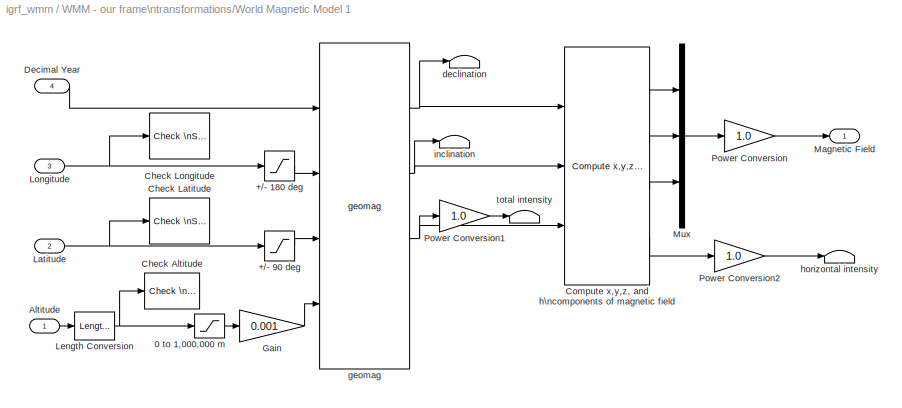
BLOCK [SubSystem] WMM - our frame\ntransformations/World Magnetic Model 1
  AncestorBlock = aerolibgravity2/World Magnetic Model 2005
  FunctionWithSeparateData = off
  MaskCallbackString = |aeroicon('aeroblkwmm');|aeroicon('aeroblkwmm');|aeroicon('aeroblkwmm');|aeroicon('aeroblkwmm');|||||
  MaskDescription = Calculate the Earth's magnetic field at a specific location and time using the World Magnetic Model (WMM). This model is valid for the year 2005 through the year 2010.\n\nThe WMM-2005 can be found on the web at http://www.ngdc.noaa.gov/seg/WMM/DoDWMM.shtml and in \"NOAA Technical Report: The US/UK World Magnetic Model for 2005-2010 \".\n\nHeight is entered in length units of selected unit system. ...<+46ch>
  MaskDisplay = port_label(ports(1).type,ports(1).port,ports(1).txt);\nport_label(ports(2).type,ports(2).port,ports(2).txt,'texmode','on');\nport_label(ports(3).type,ports(3).port,ports(3).txt,'texmode','on');\nport_label(ports(4).type,ports(4).port,ports(4).txt);\nport_label(ports(5).type,ports(5).port,ports(5).txt);\nport_label(ports(6).type,ports(6).port,ports(6).txt);\nport_label(ports(7).type,ports(7).port,p...<+125ch>
  MaskEnableString = on,on,off,off,off,on,on,on,on,on
  MaskHelp = eval('asbhelp');
  MaskHideContents = off
  MaskIconFrame = on
  MaskIconOpaque = on
  MaskIconRotate = none
  MaskIconUnits = autoscale
  MaskInitialization = [ports,dyear,maxdef,epoch,c,cd,fn,fm,snorm,k]=aeroicon('aeroblkwmm2005','icon');
  MaskPortRotate = default
  MaskPromptString = Units:|Input decimal year|Month:|Day:|Year:|Action for out of range input:|Output horizontal intensity|Output declination|Output inclination|Output total intensity
  MaskSelfModifiable = on
  MaskStyleString = popup(Metric (MKS)|English),checkbox,popup(January|February|March|April|May|June|July|August|September|October|November|December),popup(1|2|3|4|5|6|7|8|9|10|11|12|13|14|15|16|17|18|19|20|21|22|23|24|25|26|27|28|29|30|31),popup(2005|2006|2007|2008|2009|2010),popup(None|Warning|Error),checkbox,checkbox,checkbox,checkbox
  MaskToolTipString = on,on,on,on,on,on,on,on,on,on
  MaskTunableValueString = off,off,on,on,on,off,off,off,off,off
  MaskType = World Magnetic Model 2005
  MaskValueString = Metric (MKS)|on|January|1|2005|Error|off|off|off|off
  MaskVariables = units=@1;time_in=@2;month=&3;day=&4;year=&5;action=@6;h_out=@7;dec_out=@8;inc_out=@9;ti_out=@10;
  MaskVisibilityString = on,on,on,on,on,on,on,on,on,on
  MinAlgLoopOccurrences = off
  Opaque = off
  Ports = [4, 1]
  PropExecContextOutsideSubsystem = off
  RTWSystemCode = Auto
  RequestExecContextInheritance = off
  SID = 182
BLOCK [Saturate] WMM - our frame\ntransformations/World Magnetic Model 1/+//- 180 deg
  LowerLimit = -180.0
  OutDataType = sfix(16)
  OutScaling = 2^0
  SID = 5
  UpperLimit = 180.0
BLOCK [Saturate] WMM - our frame\ntransformations/World Magnetic Model 1/+//- 90 deg
  LowerLimit = -90.0
  OutDataType = sfix(16)
  OutScaling = 2^0
  SID = 6
  UpperLimit = 90.0
BLOCK [Saturate] WMM - our frame\ntransformations/World Magnetic Model 1/0 to 1,000,000 m
  LowerLimit = 0
  OutDataType = sfix(16)
  OutScaling = 2^0
  SID = 7
  UpperLimit = 1000000.0
BLOCK [Inport] WMM - our frame\ntransformations/World Magnetic Model 1/Altitude
  IconDisplay = Port number
  OutDataType = sfix(16)
  OutScaling = 2^0
  SID = 1
BLOCK [Reference] WMM - our frame\ntransformations/World Magnetic Model 1/Check Altitude  REF=simulink/Model\nVerification/Check \nStatic Range
  Description = 0 <= u <= 1000000
  FunctionWithSeparateData = off
  Ports = [1]
  RTWMemSecDataConstants = Inherit from model
  RTWMemSecDataInternal = Inherit from model
  RTWMemSecDataParameters = Inherit from model
  RTWMemSecFuncExecute = Inherit from model
  RTWMemSecFuncInitTerm = Inherit from model
  SID = 8
  ShowPortLabels = FromPortIcon
  SourceBlock = simulink/Model\nVerification/Check \nStatic Range
  SourceType = Checks_SRange
  SystemSampleTime = -1
  callback = aeroassertmsg('aeroblkwmm','alt');
  enabled = on
  export = off
  icon = graphic
  max = 1000000
  max_included = on
  min = 0
  min_included = on
  stopWhenAssertionFail = on
BLOCK [Reference] WMM - our frame\ntransformations/World Magnetic Model 1/Check Latitude  REF=simulink/Model\nVerification/Check \nStatic Range
  Description = -90 <= u <= 90
  FunctionWithSeparateData = off
  Ports = [1]
  RTWMemSecDataConstants = Inherit from model
  RTWMemSecDataInternal = Inherit from model
  RTWMemSecDataParameters = Inherit from model
  RTWMemSecFuncExecute = Inherit from model
  RTWMemSecFuncInitTerm = Inherit from model
  SID = 9
  ShowPortLabels = FromPortIcon
  SourceBlock = simulink/Model\nVerification/Check \nStatic Range
  SourceType = Checks_SRange
  SystemSampleTime = -1
  callback = aeroassertmsg('aeroblkwmm','lat');
  enabled = on
  export = off
  icon = graphic
  max = 90
  max_included = on
  min = -90
  min_included = on
  stopWhenAssertionFail = on
BLOCK [Reference] WMM - our frame\ntransformations/World Magnetic Model 1/Check Longitude  REF=simulink/Model\nVerification/Check \nStatic Range
  Description = -180 <= u <= 180
  FunctionWithSeparateData = off
  Ports = [1]
  RTWMemSecDataConstants = Inherit from model
  RTWMemSecDataInternal = Inherit from model
  RTWMemSecDataParameters = Inherit from model
  RTWMemSecFuncExecute = Inherit from model
  RTWMemSecFuncInitTerm = Inherit from model
  SID = 10
  ShowPortLabels = FromPortIcon
  SourceBlock = simulink/Model\nVerification/Check \nStatic Range
  SourceType = Checks_SRange
  SystemSampleTime = -1
  callback = aeroassertmsg('aeroblkwmm','lon');
  enabled = on
  export = off
  icon = graphic
  max = 180
  max_included = on
  min = -180
  min_included = on
  stopWhenAssertionFail = on
BLOCK [Reference] WMM - our frame\ntransformations/World Magnetic Model 1/Compute x,y,z, and h\ncomponents of magnetic field  REF=aerolibgravitysys/Compute x,y,z, and h\ncomponents of magnetic field
  FunctionWithSeparateData = off
  Ports = [3, 4]
  RTWMemSecDataConstants = Inherit from model
  RTWMemSecDataInternal = Inherit from model
  RTWMemSecDataParameters = Inherit from model
  RTWMemSecFuncExecute = Inherit from model
  RTWMemSecFuncInitTerm = Inherit from model
  SID = 11
  ShowPortLabels = FromPortIcon
  SourceBlock = aerolibgravitysys/Compute x,y,z, and h\ncomponents of magnetic field
  SourceType = SubSystem
  SystemSampleTime = -1
BLOCK [Inport] WMM - our frame\ntransformations/World Magnetic Model 1/Decimal Year
  IconDisplay = Port number
  OutDataType = sfix(16)
  OutScaling = 2^0
  Port = 4
  SID = 4
BLOCK [Gain] WMM - our frame\ntransformations/World Magnetic Model 1/Gain
  Gain = 0.001
  OutDataType = sfix(16)
  OutScaling = 2^0
  ParameterDataType = sfix(16)
  ParameterScaling = 2^0
  SID = 12
BLOCK [Inport] WMM - our frame\ntransformations/World Magnetic Model 1/Latitude
  IconDisplay = Port number
  OutDataType = sfix(16)
  OutScaling = 2^0
  Port = 2
  SID = 2
BLOCK [Reference] WMM - our frame\ntransformations/World Magnetic Model 1/Length Conversion  REF=aerolibconvert2/Length Conversion
  FunctionWithSeparateData = off
  IU = m
  OU = m
  Ports = [1, 1]
  RTWMemSecDataConstants = Inherit from model
  RTWMemSecDataInternal = Inherit from model
  RTWMemSecDataParameters = Inherit from model
  RTWMemSecFuncExecute = Inherit from model
  RTWMemSecFuncInitTerm = Inherit from model
  SID = 14
  ShowPortLabels = FromPortIcon
  SourceBlock = aerolibconvert2/Length Conversion
  SourceType = Length Conversion
  SystemSampleTime = -1
BLOCK [Inport] WMM - our frame\ntransformations/World Magnetic Model 1/Longitude
  IconDisplay = Port number
  OutDataType = sfix(16)
  OutScaling = 2^0
  Port = 3
  SID = 3
BLOCK [Outport] WMM - our frame\ntransformations/World Magnetic Model 1/Magnetic Field
  IconDisplay = Port number
  OutDataType = sfix(16)
  OutScaling = 2^0
  SID = 20
BLOCK [Mux] WMM - our frame\ntransformations/World Magnetic Model 1/Mux
  DisplayOption = bar
  Inputs = 3
  Ports = [3, 1]
  SID = 15
BLOCK [Gain] WMM - our frame\ntransformations/World Magnetic Model 1/Power Conversion
  Gain = 1.0
  OutDataType = sfix(16)
  OutScaling = 2^0
  ParameterDataType = sfix(16)
  ParameterScaling = 2^0
  SID = 16
BLOCK [Gain] WMM - our frame\ntransformations/World Magnetic Model 1/Power Conversion1
  Gain = 1.0
  OutDataType = sfix(16)
  OutScaling = 2^0
  ParameterDataType = sfix(16)
  ParameterScaling = 2^0
  SID = 17
BLOCK [Gain] WMM - our frame\ntransformations/World Magnetic Model 1/Power Conversion2
  Gain = 1.0
  OutDataType = sfix(16)
  OutScaling = 2^0
  ParameterDataType = sfix(16)
  ParameterScaling = 2^0
  SID = 18
BLOCK [Terminator] WMM - our frame\ntransformations/World Magnetic Model 1/declination
  SID = 27
BLOCK [Reference] WMM - our frame\ntransformations/World Magnetic Model 1/geomag  REF=aerolibgravitysys/geomag
  FunctionWithSeparateData = off
  Ports = [4, 4]
  RTWMemSecDataConstants = Inherit from model
  RTWMemSecDataInternal = Inherit from model
  RTWMemSecDataParameters = Inherit from model
  RTWMemSecFuncExecute = Inherit from model
  RTWMemSecFuncInitTerm = Inherit from model
  SID = 19
  ShowPortLabels = FromPortIcon
  SourceBlock = aerolibgravitysys/geomag
  SourceType = SubSystem
  SystemSampleTime = -1
BLOCK [Terminator] WMM - our frame\ntransformations/World Magnetic Model 1/horizontal intensity
  SID = 28
BLOCK [Terminator] WMM - our frame\ntransformations/World Magnetic Model 1/inclination
  SID = 26
BLOCK [Terminator] WMM - our frame\ntransformations/World Magnetic Model 1/total intensity
  SID = 25
BLOCK [Inport] WMM - our frame\ntransformations/v_S_i
  IconDisplay = Port number
  OutDataType = fixdt(1, 16)
  OutScaling = 2^0
  SID = 164
BLOCK [SubSystem] compare
  FunctionWithSeparateData = off
  MaskDescription = Embedded MATLAB block
  MaskDisplay = disp('f');
  MaskHideContents = off
  MaskIconFrame = on
  MaskIconOpaque = off
  MaskIconRotate = none
  MaskIconUnits = autoscale
  MaskPortRotate = default
  MaskSelfModifiable = on
  MaskType = Stateflow
  MinAlgLoopOccurrences = off
  Opaque = off
  PermitHierarchicalResolution = ExplicitOnly
  Ports = [3, 3]
  PropExecContextOutsideSubsystem = off
  RTWSystemCode = Auto
  RequestExecContextInheritance = off
  SID = 114
BLOCK [Demux] compare/ Demux 
  Outputs = 1
  Ports = [1, 1]
  SID = 7
BLOCK [S-Function] compare/ SFunction 
  EnableBusSupport = off
  FunctionName = sf_sfun
  PortCounts = [3 4]
  Ports = [3, 4]
  SID = 6
  Tag = Stateflow S-Function igrf_wmm 5
BLOCK [Terminator] compare/ Terminator 
  SID = 9
BLOCK [Inport] compare/B_off
  IconDisplay = Port number
  OutDataType = sfix(16)
  OutScaling = 2^0
  SID = 1
BLOCK [Inport] compare/B_on
  IconDisplay = Port number
  Port = 2
  SID = 10
BLOCK [Inport] compare/B_w
  IconDisplay = Port number
  Port = 3
  SID = 11
BLOCK [Outport] compare/x
  IconDisplay = Port number
  SID = 12
BLOCK [Outport] compare/y
  IconDisplay = Port number
  OutDataType = sfix(16)
  OutScaling = 2^0
  Port = 2
  SID = 5
BLOCK [Outport] compare/z
  IconDisplay = Port number
  Port = 3
  SID = 13
BLOCK [Scope] dx
  DataFormat = StructureWithTime
  Decimation = 6
  Floating = off
  LimitDataPoints = off
  NumInputPorts = 1
  Ports = [1]
  SID = 115
  SampleTime = 0
  SaveName = ScopeData4
  YMax = 35000
  YMin = -30000
BLOCK [Scope] dy
  DataFormat = StructureWithTime
  Decimation = 6
  Floating = off
  LimitDataPoints = off
  NumInputPorts = 1
  Ports = [1]
  SID = 116
  SampleTime = 0
  SaveName = ScopeData5
  YMax = 20000
  YMin = -35000
BLOCK [Scope] dz
  DataFormat = StructureWithTime
  Decimation = 6
  Floating = off
  LimitDataPoints = off
  NumInputPorts = 1
  Ports = [1]
  SID = 117
  SampleTime = 0
  SaveName = ScopeData6
  YMax = 20000
  YMin = -35000
ANNOTATION SGP 1: SGP
NET From File1:1 -> B_off:1, compare:1
NET From File2:1 -> IGRF :1, Scope2:1, WMM - Matlab's \nframe transformations:1, WMM - our frame\ntransformations:1
LINE IGRF /Clock1:1 -> IGRF /Embedded\nMATLAB Function1:4
LINE IGRF /Clock:1 -> IGRF /Gain:1
LINE IGRF /Constant1:1 -> IGRF /Embedded\nMATLAB Function:5
LINE IGRF /Constant:1 -> IGRF /Sum:1
LINE IGRF /ECI -> LLA/Clock2:1 -> IGRF /ECI -> LLA/r_ECI -> r_ECEF:2
LINE IGRF /ECI -> LLA/r_ECEF -> r_LLA/ Demux :1 -> IGRF /ECI -> LLA/r_ECEF -> r_LLA/ Terminator :1
LINE IGRF /ECI -> LLA/r_ECEF -> r_LLA/ SFunction :1 -> IGRF /ECI -> LLA/r_ECEF -> r_LLA/ Demux :1
LINE IGRF /ECI -> LLA/r_ECEF -> r_LLA/ SFunction :2 -> IGRF /ECI -> LLA/r_ECEF -> r_LLA/Latitude:1
LINE IGRF /ECI -> LLA/r_ECEF -> r_LLA/ SFunction :3 -> IGRF /ECI -> LLA/r_ECEF -> r_LLA/Longitude:1
LINE IGRF /ECI -> LLA/r_ECEF -> r_LLA/ SFunction :4 -> IGRF /ECI -> LLA/r_ECEF -> r_LLA/Altitude:1
LINE IGRF /ECI -> LLA/r_ECEF -> r_LLA/r_ECEF:1 -> IGRF /ECI -> LLA/r_ECEF -> r_LLA/ SFunction :1
LINE IGRF /ECI -> LLA/r_ECEF -> r_LLA:1 -> IGRF /ECI -> LLA/lat:1
LINE IGRF /ECI -> LLA/r_ECEF -> r_LLA:2 -> IGRF /ECI -> LLA/long:1
LINE IGRF /ECI -> LLA/r_ECEF -> r_LLA:3 -> IGRF /ECI -> LLA/alt:1
LINE IGRF /ECI -> LLA/r_ECI -> r_ECEF/ Demux :1 -> IGRF /ECI -> LLA/r_ECI -> r_ECEF/ Terminator :1
LINE IGRF /ECI -> LLA/r_ECI -> r_ECEF/ SFunction :1 -> IGRF /ECI -> LLA/r_ECI -> r_ECEF/ Demux :1
LINE IGRF /ECI -> LLA/r_ECI -> r_ECEF/ SFunction :2 -> IGRF /ECI -> LLA/r_ECI -> r_ECEF/r_ECEF:1
LINE IGRF /ECI -> LLA/r_ECI -> r_ECEF/t:1 -> IGRF /ECI -> LLA/r_ECI -> r_ECEF/ SFunction :2
LINE IGRF /ECI -> LLA/r_ECI -> r_ECEF/v_S_i:1 -> IGRF /ECI -> LLA/r_ECI -> r_ECEF/ SFunction :1
LINE IGRF /ECI -> LLA/r_ECI -> r_ECEF:1 -> IGRF /ECI -> LLA/r_ECEF -> r_LLA:1
LINE IGRF /ECI -> LLA/v_S_i:1 -> IGRF /ECI -> LLA/r_ECI -> r_ECEF:1
LINE IGRF /ECI -> LLA:1 -> IGRF /Embedded\nMATLAB Function:1
NET IGRF /ECI -> LLA:2 -> IGRF /Embedded\nMATLAB Function1:1, IGRF /Embedded\nMATLAB Function:2
NET IGRF /ECI -> LLA:3 -> IGRF /Embedded\nMATLAB Function1:2, IGRF /Embedded\nMATLAB Function:3
LINE IGRF /Embedded\nMATLAB Function/ Demux :1 -> IGRF /Embedded\nMATLAB Function/ Terminator :1
LINE IGRF /Embedded\nMATLAB Function/ SFunction :1 -> IGRF /Embedded\nMATLAB Function/ Demux :1
LINE IGRF /Embedded\nMATLAB Function/ SFunction :2 -> IGRF /Embedded\nMATLAB Function/Bi:1
LINE IGRF /Embedded\nMATLAB Function/ALT:1 -> IGRF /Embedded\nMATLAB Function/ SFunction :1
LINE IGRF /Embedded\nMATLAB Function/DATE:1 -> IGRF /Embedded\nMATLAB Function/ SFunction :4
LINE IGRF /Embedded\nMATLAB Function/ELONG:1 -> IGRF /Embedded\nMATLAB Function/ SFunction :3
LINE IGRF /Embedded\nMATLAB Function/LAT:1 -> IGRF /Embedded\nMATLAB Function/ SFunction :2
LINE IGRF /Embedded\nMATLAB Function/ORDER:1 -> IGRF /Embedded\nMATLAB Function/ SFunction :5
LINE IGRF /Embedded\nMATLAB Function1/ Demux :1 -> IGRF /Embedded\nMATLAB Function1/ Terminator :1
LINE IGRF /Embedded\nMATLAB Function1/ SFunction :1 -> IGRF /Embedded\nMATLAB Function1/ Demux :1
LINE IGRF /Embedded\nMATLAB Function1/ SFunction :2 -> IGRF /Embedded\nMATLAB Function1/B_I:1
LINE IGRF /Embedded\nMATLAB Function1/B_NED:1 -> IGRF /Embedded\nMATLAB Function1/ SFunction :3
LINE IGRF /Embedded\nMATLAB Function1/LAT:1 -> IGRF /Embedded\nMATLAB Function1/ SFunction :1
LINE IGRF /Embedded\nMATLAB Function1/LONG:1 -> IGRF /Embedded\nMATLAB Function1/ SFunction :2
LINE IGRF /Embedded\nMATLAB Function1/t:1 -> IGRF /Embedded\nMATLAB Function1/ SFunction :4
LINE IGRF /Embedded\nMATLAB Function1:1 -> IGRF /B_i:1
LINE IGRF /Embedded\nMATLAB Function:1 -> IGRF /Embedded\nMATLAB Function1:3
LINE IGRF /Gain:1 -> IGRF /Sum:2
LINE IGRF /Sum:1 -> IGRF /Embedded\nMATLAB Function:4
LINE IGRF /v_S_i:1 -> IGRF /ECI -> LLA:1
NET IGRF :1 -> B_on:1, compare:2
LINE SGP 1/Add1:1 -> SGP 1/Gain:1
LINE SGP 1/Add:1 -> SGP 1/Transpose:1
LINE SGP 1/Clock:1 -> SGP 1/Add1:2
LINE SGP 1/Constant1:1 -> SGP 1/Add1:1
LINE SGP 1/Constant:1 -> SGP 1/Gain1:1
LINE SGP 1/Gain1:1 -> SGP 1/Add:1
LINE SGP 1/Gain:1 -> SGP 1/Subsystem:1
LINE SGP 1/Mux:1 -> SGP 1/Add:2
LINE SGP 1/Subsystem/Embedded\nMATLAB Function2/ Demux :1 -> SGP 1/Subsystem/Embedded\nMATLAB Function2/ Terminator :1
LINE SGP 1/Subsystem/Embedded\nMATLAB Function2/ SFunction :1 -> SGP 1/Subsystem/Embedded\nMATLAB Function2/ Demux :1
LINE SGP 1/Subsystem/Embedded\nMATLAB Function2/ SFunction :2 -> SGP 1/Subsystem/Embedded\nMATLAB Function2/R:1
LINE SGP 1/Subsystem/Embedded\nMATLAB Function2/ SFunction :3 -> SGP 1/Subsystem/Embedded\nMATLAB Function2/dR:1
LINE SGP 1/Subsystem/Embedded\nMATLAB Function2/dT:1 -> SGP 1/Subsystem/Embedded\nMATLAB Function2/ SFunction :1
LINE SGP 1/Subsystem/Embedded\nMATLAB Function2:1 -> SGP 1/Subsystem/R (m):1
LINE SGP 1/Subsystem/Embedded\nMATLAB Function2:2 -> SGP 1/Subsystem/V (m//s):1
LINE SGP 1/Subsystem/dt:1 -> SGP 1/Subsystem/Embedded\nMATLAB Function2:1
LINE SGP 1/Subsystem:1 -> SGP 1/Mux:1
LINE SGP 1/Subsystem:2 -> SGP 1/Mux:2
LINE SGP 1/Transpose:1 -> SGP 1/v_S_i:1
LINE WMM - Matlab's \nframe transformations/Demux:1 -> WMM - Matlab's \nframe transformations/v_Vi1:2
LINE WMM - Matlab's \nframe transformations/Demux:2 -> WMM - Matlab's \nframe transformations/Terminator:1
LINE WMM - Matlab's \nframe transformations/Invert \n3x3 Matrix:1 -> WMM - Matlab's \nframe transformations/v_Bi:1
LINE WMM - Matlab's \nframe transformations/Magnetic field v_Be/Add:1 -> WMM - Matlab's \nframe transformations/Magnetic field v_Be/World Magnetic Model 2005:4
LINE WMM - Matlab's \nframe transformations/Magnetic field v_Be/Clock:1 -> WMM - Matlab's \nframe transformations/Magnetic field v_Be/Gain1:1
LINE WMM - Matlab's \nframe transformations/Magnetic field v_Be/Constant:1 -> WMM - Matlab's \nframe transformations/Magnetic field v_Be/Add:1
LINE WMM - Matlab's \nframe transformations/Magnetic field v_Be/Demux:1 -> WMM - Matlab's \nframe transformations/Magnetic field v_Be/World Magnetic Model 2005:2
LINE WMM - Matlab's \nframe transformations/Magnetic field v_Be/Demux:2 -> WMM - Matlab's \nframe transformations/Magnetic field v_Be/World Magnetic Model 2005:3
LINE WMM - Matlab's \nframe transformations/Magnetic field v_Be/Direction Cosine Matrix\nECEF to NED:1 -> WMM - Matlab's \nframe transformations/Magnetic field v_Be/Invert \n3x3 Matrix:1
NET WMM - Matlab's \nframe transformations/Magnetic field v_Be/ECEF Position to LLA:1 -> WMM - Matlab's \nframe transformations/Magnetic field v_Be/Demux:1, WMM - Matlab's \nframe transformations/Magnetic field v_Be/Direction Cosine Matrix\nECEF to NED:1
LINE WMM - Matlab's \nframe transformations/Magnetic field v_Be/ECEF Position to LLA:2 -> WMM - Matlab's \nframe transformations/Magnetic field v_Be/World Magnetic Model 2005:1
LINE WMM - Matlab's \nframe transformations/Magnetic field v_Be/Gain1:1 -> WMM - Matlab's \nframe transformations/Magnetic field v_Be/Add:2
LINE WMM - Matlab's \nframe transformations/Magnetic field v_Be/Gain:1 -> WMM - Matlab's \nframe transformations/Magnetic field v_Be/Product:2
LINE WMM - Matlab's \nframe transformations/Magnetic field v_Be/Invert \n3x3 Matrix:1 -> WMM - Matlab's \nframe transformations/Magnetic field v_Be/Product:1
LINE WMM - Matlab's \nframe transformations/Magnetic field v_Be/Product:1 -> WMM - Matlab's \nframe transformations/Magnetic field v_Be/v_B_e (T) :1
LINE WMM - Matlab's \nframe transformations/Magnetic field v_Be/World Magnetic Model 2005/+//- 180 deg:1 -> WMM - Matlab's \nframe transformations/Magnetic field v_Be/World Magnetic Model 2005/geomag:2
LINE WMM - Matlab's \nframe transformations/Magnetic field v_Be/World Magnetic Model 2005/+//- 90 deg:1 -> WMM - Matlab's \nframe transformations/Magnetic field v_Be/World Magnetic Model 2005/geomag:3
LINE WMM - Matlab's \nframe transformations/Magnetic field v_Be/World Magnetic Model 2005/0 to 1,000,000 m:1 -> WMM - Matlab's \nframe transformations/Magnetic field v_Be/World Magnetic Model 2005/Gain:1
LINE WMM - Matlab's \nframe transformations/Magnetic field v_Be/World Magnetic Model 2005/Altitude:1 -> WMM - Matlab's \nframe transformations/Magnetic field v_Be/World Magnetic Model 2005/Length Conversion:1
LINE WMM - Matlab's \nframe transformations/Magnetic field v_Be/World Magnetic Model 2005/Compute x,y,z, and h\ncomponents of magnetic field:1 -> WMM - Matlab's \nframe transformations/Magnetic field v_Be/World Magnetic Model 2005/Mux:1
LINE WMM - Matlab's \nframe transformations/Magnetic field v_Be/World Magnetic Model 2005/Compute x,y,z, and h\ncomponents of magnetic field:2 -> WMM - Matlab's \nframe transformations/Magnetic field v_Be/World Magnetic Model 2005/Mux:2
LINE WMM - Matlab's \nframe transformations/Magnetic field v_Be/World Magnetic Model 2005/Compute x,y,z, and h\ncomponents of magnetic field:3 -> WMM - Matlab's \nframe transformations/Magnetic field v_Be/World Magnetic Model 2005/Mux:3
LINE WMM - Matlab's \nframe transformations/Magnetic field v_Be/World Magnetic Model 2005/Compute x,y,z, and h\ncomponents of magnetic field:4 -> WMM - Matlab's \nframe transformations/Magnetic field v_Be/World Magnetic Model 2005/Power Conversion2:1
LINE WMM - Matlab's \nframe transformations/Magnetic field v_Be/World Magnetic Model 2005/Decimal Year:1 -> WMM - Matlab's \nframe transformations/Magnetic field v_Be/World Magnetic Model 2005/geomag:1
LINE WMM - Matlab's \nframe transformations/Magnetic field v_Be/World Magnetic Model 2005/Gain:1 -> WMM - Matlab's \nframe transformations/Magnetic field v_Be/World Magnetic Model 2005/geomag:4
NET WMM - Matlab's \nframe transformations/Magnetic field v_Be/World Magnetic Model 2005/Latitude:1 -> WMM - Matlab's \nframe transformations/Magnetic field v_Be/World Magnetic Model 2005/+//- 90 deg:1, WMM - Matlab's \nframe transformations/Magnetic field v_Be/World Magnetic Model 2005/Check Latitude:1
NET WMM - Matlab's \nframe transformations/Magnetic field v_Be/World Magnetic Model 2005/Length Conversion:1 -> WMM - Matlab's \nframe transformations/Magnetic field v_Be/World Magnetic Model 2005/0 to 1,000,000 m:1, WMM - Matlab's \nframe transformations/Magnetic field v_Be/World Magnetic Model 2005/Check Altitude:1
NET WMM - Matlab's \nframe transformations/Magnetic field v_Be/World Magnetic Model 2005/Longitude:1 -> WMM - Matlab's \nframe transformations/Magnetic field v_Be/World Magnetic Model 2005/+//- 180 deg:1, WMM - Matlab's \nframe transformations/Magnetic field v_Be/World Magnetic Model 2005/Check Longitude:1
LINE WMM - Matlab's \nframe transformations/Magnetic field v_Be/World Magnetic Model 2005/Mux:1 -> WMM - Matlab's \nframe transformations/Magnetic field v_Be/World Magnetic Model 2005/Power Conversion:1
LINE WMM - Matlab's \nframe transformations/Magnetic field v_Be/World Magnetic Model 2005/Power Conversion1:1 -> WMM - Matlab's \nframe transformations/Magnetic field v_Be/World Magnetic Model 2005/total intensity:1
LINE WMM - Matlab's \nframe transformations/Magnetic field v_Be/World Magnetic Model 2005/Power Conversion2:1 -> WMM - Matlab's \nframe transformations/Magnetic field v_Be/World Magnetic Model 2005/horizontal intensity:1
LINE WMM - Matlab's \nframe transformations/Magnetic field v_Be/World Magnetic Model 2005/Power Conversion:1 -> WMM - Matlab's \nframe transformations/Magnetic field v_Be/World Magnetic Model 2005/Magnetic Field:1
NET WMM - Matlab's \nframe transformations/Magnetic field v_Be/World Magnetic Model 2005/geomag:1 -> WMM - Matlab's \nframe transformations/Magnetic field v_Be/World Magnetic Model 2005/Compute x,y,z, and h\ncomponents of magnetic field:1, WMM - Matlab's \nframe transformations/Magnetic field v_Be/World Magnetic Model 2005/declination:1
NET WMM - Matlab's \nframe transformations/Magnetic field v_Be/World Magnetic Model 2005/geomag:2 -> WMM - Matlab's \nframe transformations/Magnetic field v_Be/World Magnetic Model 2005/Compute x,y,z, and h\ncomponents of magnetic field:2, WMM - Matlab's \nframe transformations/Magnetic field v_Be/World Magnetic Model 2005/inclination:1
NET WMM - Matlab's \nframe transformations/Magnetic field v_Be/World Magnetic Model 2005/geomag:3 -> WMM - Matlab's \nframe transformations/Magnetic field v_Be/World Magnetic Model 2005/Compute x,y,z, and h\ncomponents of magnetic field:3, WMM - Matlab's \nframe transformations/Magnetic field v_Be/World Magnetic Model 2005/Power Conversion1:1
LINE WMM - Matlab's \nframe transformations/Magnetic field v_Be/World Magnetic Model 2005:1 -> WMM - Matlab's \nframe transformations/Magnetic field v_Be/Gain:1
LINE WMM - Matlab's \nframe transformations/Magnetic field v_Be/XYZ-ECEF:1 -> WMM - Matlab's \nframe transformations/Magnetic field v_Be/ECEF Position to LLA:1
LINE WMM - Matlab's \nframe transformations/Magnetic field v_Be:1 -> WMM - Matlab's \nframe transformations/v_Bi:2
LINE WMM - Matlab's \nframe transformations/Subsystem/Clock:1 -> WMM - Matlab's \nframe transformations/Subsystem/m_DCM_ECI-ECEF2:5
LINE WMM - Matlab's \nframe transformations/Subsystem/m_DCM_ECI-ECEF2/ Demux :1 -> WMM - Matlab's \nframe transformations/Subsystem/m_DCM_ECI-ECEF2/ Terminator :1
LINE WMM - Matlab's \nframe transformations/Subsystem/m_DCM_ECI-ECEF2/ SFunction :1 -> WMM - Matlab's \nframe transformations/Subsystem/m_DCM_ECI-ECEF2/ Demux :1
LINE WMM - Matlab's \nframe transformations/Subsystem/m_DCM_ECI-ECEF2/ SFunction :2 -> WMM - Matlab's \nframe transformations/Subsystem/m_DCM_ECI-ECEF2/TEI:1
LINE WMM - Matlab's \nframe transformations/Subsystem/m_DCM_ECI-ECEF2/W_EARTH_ROT:1 -> WMM - Matlab's \nframe transformations/Subsystem/m_DCM_ECI-ECEF2/ SFunction :4
LINE WMM - Matlab's \nframe transformations/Subsystem/m_DCM_ECI-ECEF2/equinox:1 -> WMM - Matlab's \nframe transformations/Subsystem/m_DCM_ECI-ECEF2/ SFunction :2
LINE WMM - Matlab's \nframe transformations/Subsystem/m_DCM_ECI-ECEF2/stperut:1 -> WMM - Matlab's \nframe transformations/Subsystem/m_DCM_ECI-ECEF2/ SFunction :3
LINE WMM - Matlab's \nframe transformations/Subsystem/m_DCM_ECI-ECEF2/t:1 -> WMM - Matlab's \nframe transformations/Subsystem/m_DCM_ECI-ECEF2/ SFunction :5
LINE WMM - Matlab's \nframe transformations/Subsystem/m_DCM_ECI-ECEF2/today:1 -> WMM - Matlab's \nframe transformations/Subsystem/m_DCM_ECI-ECEF2/ SFunction :1
LINE WMM - Matlab's \nframe transformations/Subsystem/m_DCM_ECI-ECEF2:1 -> WMM - Matlab's \nframe transformations/Subsystem/TEI:1
LINE WMM - Matlab's \nframe transformations/Subsystem/today1:1 -> WMM - Matlab's \nframe transformations/Subsystem/m_DCM_ECI-ECEF2:2
LINE WMM - Matlab's \nframe transformations/Subsystem/today2:1 -> WMM - Matlab's \nframe transformations/Subsystem/m_DCM_ECI-ECEF2:3
LINE WMM - Matlab's \nframe transformations/Subsystem/today3:1 -> WMM - Matlab's \nframe transformations/Subsystem/m_DCM_ECI-ECEF2:4
LINE WMM - Matlab's \nframe transformations/Subsystem/today:1 -> WMM - Matlab's \nframe transformations/Subsystem/m_DCM_ECI-ECEF2:1
NET WMM - Matlab's \nframe transformations/Subsystem:1 -> WMM - Matlab's \nframe transformations/Invert \n3x3 Matrix:1, WMM - Matlab's \nframe transformations/v_Vi1:1
LINE WMM - Matlab's \nframe transformations/v_Bi:1 -> WMM - Matlab's \nframe transformations/v_B_I:1
LINE WMM - Matlab's \nframe transformations/v_S_i:1 -> WMM - Matlab's \nframe transformations/Demux:1
LINE WMM - Matlab's \nframe transformations/v_Vi1:1 -> WMM - Matlab's \nframe transformations/Magnetic field v_Be:1
NET WMM - Matlab's \nframe transformations:1 -> B_w:1, compare:3
LINE WMM - our frame\ntransformations/Clock1:1 -> WMM - our frame\ntransformations/Gain1:1
LINE WMM - our frame\ntransformations/Clock2:1 -> WMM - our frame\ntransformations/Embedded\nMATLAB Function2:4
LINE WMM - our frame\ntransformations/Constant1:1 -> WMM - our frame\ntransformations/Sum1:1
LINE WMM - our frame\ntransformations/ECI -> LLA1/Clock2:1 -> WMM - our frame\ntransformations/ECI -> LLA1/r_ECI -> r_ECEF:2
LINE WMM - our frame\ntransformations/ECI -> LLA1/r_ECEF -> r_LLA/ Demux :1 -> WMM - our frame\ntransformations/ECI -> LLA1/r_ECEF -> r_LLA/ Terminator :1
LINE WMM - our frame\ntransformations/ECI -> LLA1/r_ECEF -> r_LLA/ SFunction :1 -> WMM - our frame\ntransformations/ECI -> LLA1/r_ECEF -> r_LLA/ Demux :1
LINE WMM - our frame\ntransformations/ECI -> LLA1/r_ECEF -> r_LLA/ SFunction :2 -> WMM - our frame\ntransformations/ECI -> LLA1/r_ECEF -> r_LLA/Latitude:1
LINE WMM - our frame\ntransformations/ECI -> LLA1/r_ECEF -> r_LLA/ SFunction :3 -> WMM - our frame\ntransformations/ECI -> LLA1/r_ECEF -> r_LLA/Longitude:1
LINE WMM - our frame\ntransformations/ECI -> LLA1/r_ECEF -> r_LLA/ SFunction :4 -> WMM - our frame\ntransformations/ECI -> LLA1/r_ECEF -> r_LLA/Altitude:1
LINE WMM - our frame\ntransformations/ECI -> LLA1/r_ECEF -> r_LLA/r_ECEF:1 -> WMM - our frame\ntransformations/ECI -> LLA1/r_ECEF -> r_LLA/ SFunction :1
LINE WMM - our frame\ntransformations/ECI -> LLA1/r_ECEF -> r_LLA:1 -> WMM - our frame\ntransformations/ECI -> LLA1/lat:1
LINE WMM - our frame\ntransformations/ECI -> LLA1/r_ECEF -> r_LLA:2 -> WMM - our frame\ntransformations/ECI -> LLA1/long:1
LINE WMM - our frame\ntransformations/ECI -> LLA1/r_ECEF -> r_LLA:3 -> WMM - our frame\ntransformations/ECI -> LLA1/alt:1
LINE WMM - our frame\ntransformations/ECI -> LLA1/r_ECI -> r_ECEF/ Demux :1 -> WMM - our frame\ntransformations/ECI -> LLA1/r_ECI -> r_ECEF/ Terminator :1
LINE WMM - our frame\ntransformations/ECI -> LLA1/r_ECI -> r_ECEF/ SFunction :1 -> WMM - our frame\ntransformations/ECI -> LLA1/r_ECI -> r_ECEF/ Demux :1
LINE WMM - our frame\ntransformations/ECI -> LLA1/r_ECI -> r_ECEF/ SFunction :2 -> WMM - our frame\ntransformations/ECI -> LLA1/r_ECI -> r_ECEF/r_ECEF:1
LINE WMM - our frame\ntransformations/ECI -> LLA1/r_ECI -> r_ECEF/t:1 -> WMM - our frame\ntransformations/ECI -> LLA1/r_ECI -> r_ECEF/ SFunction :2
LINE WMM - our frame\ntransformations/ECI -> LLA1/r_ECI -> r_ECEF/v_S_i:1 -> WMM - our frame\ntransformations/ECI -> LLA1/r_ECI -> r_ECEF/ SFunction :1
LINE WMM - our frame\ntransformations/ECI -> LLA1/r_ECI -> r_ECEF:1 -> WMM - our frame\ntransformations/ECI -> LLA1/r_ECEF -> r_LLA:1
LINE WMM - our frame\ntransformations/ECI -> LLA1/v_S_i:1 -> WMM - our frame\ntransformations/ECI -> LLA1/r_ECI -> r_ECEF:1
LINE WMM - our frame\ntransformations/ECI -> LLA1:1 -> WMM - our frame\ntransformations/World Magnetic Model 1:1
NET WMM - our frame\ntransformations/ECI -> LLA1:2 -> WMM - our frame\ntransformations/Embedded\nMATLAB Function2:1, WMM - our frame\ntransformations/World Magnetic Model 1:2
NET WMM - our frame\ntransformations/ECI -> LLA1:3 -> WMM - our frame\ntransformations/Embedded\nMATLAB Function2:2, WMM - our frame\ntransformations/World Magnetic Model 1:3
LINE WMM - our frame\ntransformations/Embedded\nMATLAB Function2/ Demux :1 -> WMM - our frame\ntransformations/Embedded\nMATLAB Function2/ Terminator :1
LINE WMM - our frame\ntransformations/Embedded\nMATLAB Function2/ SFunction :1 -> WMM - our frame\ntransformations/Embedded\nMATLAB Function2/ Demux :1
LINE WMM - our frame\ntransformations/Embedded\nMATLAB Function2/ SFunction :2 -> WMM - our frame\ntransformations/Embedded\nMATLAB Function2/B_I:1
LINE WMM - our frame\ntransformations/Embedded\nMATLAB Function2/B_NED:1 -> WMM - our frame\ntransformations/Embedded\nMATLAB Function2/ SFunction :3
LINE WMM - our frame\ntransformations/Embedded\nMATLAB Function2/LAT:1 -> WMM - our frame\ntransformations/Embedded\nMATLAB Function2/ SFunction :1
LINE WMM - our frame\ntransformations/Embedded\nMATLAB Function2/LONG:1 -> WMM - our frame\ntransformations/Embedded\nMATLAB Function2/ SFunction :2
LINE WMM - our frame\ntransformations/Embedded\nMATLAB Function2/t:1 -> WMM - our frame\ntransformations/Embedded\nMATLAB Function2/ SFunction :4
LINE WMM - our frame\ntransformations/Embedded\nMATLAB Function2:1 -> WMM - our frame\ntransformations/B_i:1
LINE WMM - our frame\ntransformations/Gain1:1 -> WMM - our frame\ntransformations/Sum1:2
LINE WMM - our frame\ntransformations/Sum1:1 -> WMM - our frame\ntransformations/World Magnetic Model 1:4
LINE WMM - our frame\ntransformations/World Magnetic Model 1/+//- 180 deg:1 -> WMM - our frame\ntransformations/World Magnetic Model 1/geomag:2
LINE WMM - our frame\ntransformations/World Magnetic Model 1/+//- 90 deg:1 -> WMM - our frame\ntransformations/World Magnetic Model 1/geomag:3
LINE WMM - our frame\ntransformations/World Magnetic Model 1/0 to 1,000,000 m:1 -> WMM - our frame\ntransformations/World Magnetic Model 1/Gain:1
LINE WMM - our frame\ntransformations/World Magnetic Model 1/Altitude:1 -> WMM - our frame\ntransformations/World Magnetic Model 1/Length Conversion:1
LINE WMM - our frame\ntransformations/World Magnetic Model 1/Compute x,y,z, and h\ncomponents of magnetic field:1 -> WMM - our frame\ntransformations/World Magnetic Model 1/Mux:1
LINE WMM - our frame\ntransformations/World Magnetic Model 1/Compute x,y,z, and h\ncomponents of magnetic field:2 -> WMM - our frame\ntransformations/World Magnetic Model 1/Mux:2
LINE WMM - our frame\ntransformations/World Magnetic Model 1/Compute x,y,z, and h\ncomponents of magnetic field:3 -> WMM - our frame\ntransformations/World Magnetic Model 1/Mux:3
LINE WMM - our frame\ntransformations/World Magnetic Model 1/Compute x,y,z, and h\ncomponents of magnetic field:4 -> WMM - our frame\ntransformations/World Magnetic Model 1/Power Conversion2:1
LINE WMM - our frame\ntransformations/World Magnetic Model 1/Decimal Year:1 -> WMM - our frame\ntransformations/World Magnetic Model 1/geomag:1
LINE WMM - our frame\ntransformations/World Magnetic Model 1/Gain:1 -> WMM - our frame\ntransformations/World Magnetic Model 1/geomag:4
NET WMM - our frame\ntransformations/World Magnetic Model 1/Latitude:1 -> WMM - our frame\ntransformations/World Magnetic Model 1/+//- 90 deg:1, WMM - our frame\ntransformations/World Magnetic Model 1/Check Latitude:1
NET WMM - our frame\ntransformations/World Magnetic Model 1/Length Conversion:1 -> WMM - our frame\ntransformations/World Magnetic Model 1/0 to 1,000,000 m:1, WMM - our frame\ntransformations/World Magnetic Model 1/Check Altitude:1
NET WMM - our frame\ntransformations/World Magnetic Model 1/Longitude:1 -> WMM - our frame\ntransformations/World Magnetic Model 1/+//- 180 deg:1, WMM - our frame\ntransformations/World Magnetic Model 1/Check Longitude:1
LINE WMM - our frame\ntransformations/World Magnetic Model 1/Mux:1 -> WMM - our frame\ntransformations/World Magnetic Model 1/Power Conversion:1
LINE WMM - our frame\ntransformations/World Magnetic Model 1/Power Conversion1:1 -> WMM - our frame\ntransformations/World Magnetic Model 1/total intensity:1
LINE WMM - our frame\ntransformations/World Magnetic Model 1/Power Conversion2:1 -> WMM - our frame\ntransformations/World Magnetic Model 1/horizontal intensity:1
LINE WMM - our frame\ntransformations/World Magnetic Model 1/Power Conversion:1 -> WMM - our frame\ntransformations/World Magnetic Model 1/Magnetic Field:1
NET WMM - our frame\ntransformations/World Magnetic Model 1/geomag:1 -> WMM - our frame\ntransformations/World Magnetic Model 1/Compute x,y,z, and h\ncomponents of magnetic field:1, WMM - our frame\ntransformations/World Magnetic Model 1/declination:1
NET WMM - our frame\ntransformations/World Magnetic Model 1/geomag:2 -> WMM - our frame\ntransformations/World Magnetic Model 1/Compute x,y,z, and h\ncomponents of magnetic field:2, WMM - our frame\ntransformations/World Magnetic Model 1/inclination:1
NET WMM - our frame\ntransformations/World Magnetic Model 1/geomag:3 -> WMM - our frame\ntransformations/World Magnetic Model 1/Compute x,y,z, and h\ncomponents of magnetic field:3, WMM - our frame\ntransformations/World Magnetic Model 1/Power Conversion1:1
LINE WMM - our frame\ntransformations/World Magnetic Model 1:1 -> WMM - our frame\ntransformations/Embedded\nMATLAB Function2:3
LINE WMM - our frame\ntransformations/v_S_i:1 -> WMM - our frame\ntransformations/ECI -> LLA1:1
LINE WMM - our frame\ntransformations:1 -> B_w1:1
LINE compare/ Demux :1 -> compare/ Terminator :1
LINE compare/ SFunction :1 -> compare/ Demux :1
LINE compare/ SFunction :2 -> compare/x:1
LINE compare/ SFunction :3 -> compare/y:1
LINE compare/ SFunction :4 -> compare/z:1
LINE compare/B_off:1 -> compare/ SFunction :1
LINE compare/B_on:1 -> compare/ SFunction :2
LINE compare/B_w:1 -> compare/ SFunction :3
LINE compare:1 -> dx:1
LINE compare:2 -> dy:1
LINE compare:3 -> dz:1
note: NET lines group one-source signal fan-out (src -> all destinations, sorted); 1:1 wires keep LINE
CHART IGRF /Embedded\nMATLAB Function states=1 transitions=1
  STATE_LABEL 'eML_blk_kernel()'
CHART IGRF /ECI -> LLA/r_ECEF -> r_LLA states=1 transitions=1
  STATE_LABEL 'eML_blk_kernel()'
CHART IGRF /Embedded\nMATLAB Function1 states=1 transitions=1
  STATE_LABEL 'eML_blk_kernel()'
CHART IGRF /ECI -> LLA/r_ECI -> r_ECEF states=1 transitions=1
  STATE_LABEL 'eML_blk_kernel()'
CHART compare states=1 transitions=1
  STATE_LABEL 'eML_blk_kernel()'
CHART WMM - our frame\ntransformations/ECI -> LLA1/r_ECEF -> r_LLA states=1 transitions=1
  STATE_LABEL 'eML_blk_kernel()'
CHART WMM - our frame\ntransformations/ECI -> LLA1/r_ECI -> r_ECEF states=1 transitions=1
  STATE_LABEL 'eML_blk_kernel()'
CHART WMM - our frame\ntransformations/Embedded\nMATLAB Function2 states=1 transitions=1
  STATE_LABEL 'eML_blk_kernel()'
CHART WMM - Matlab's \nframe transformations/Subsystem/m_DCM_ECI-ECEF2 states=1 transitions=1
  STATE_LABEL 'eML_blk_kernel()'
CHART SGP 1/Subsystem/Embedded\nMATLAB Function2 states=1 transitions=1
  STATE_LABEL 'eML_blk_kernel()'
